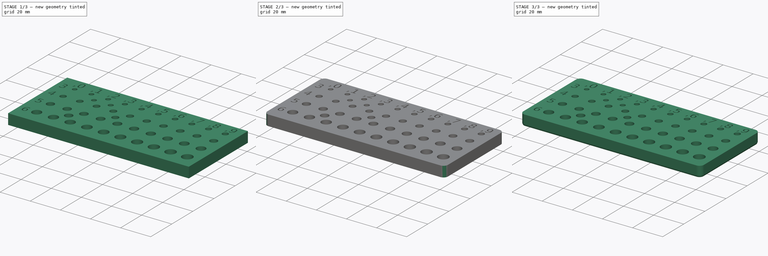
[diagram: build sequence overview — one tinted view per stage of 3, left to right]
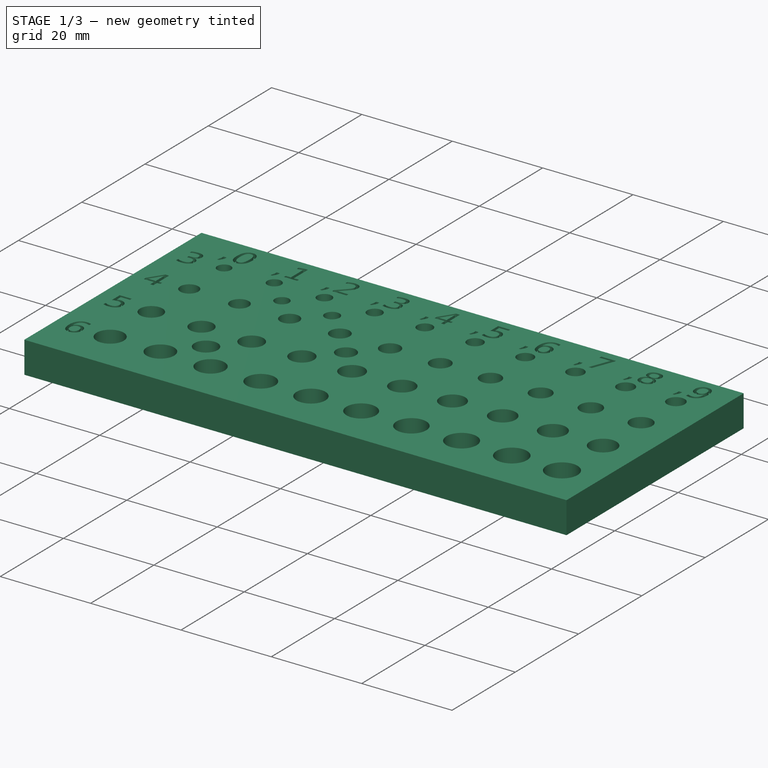
[diagram: stage 1 of 3 — iso view after this stage's code; geometry added in this stage tinted green]
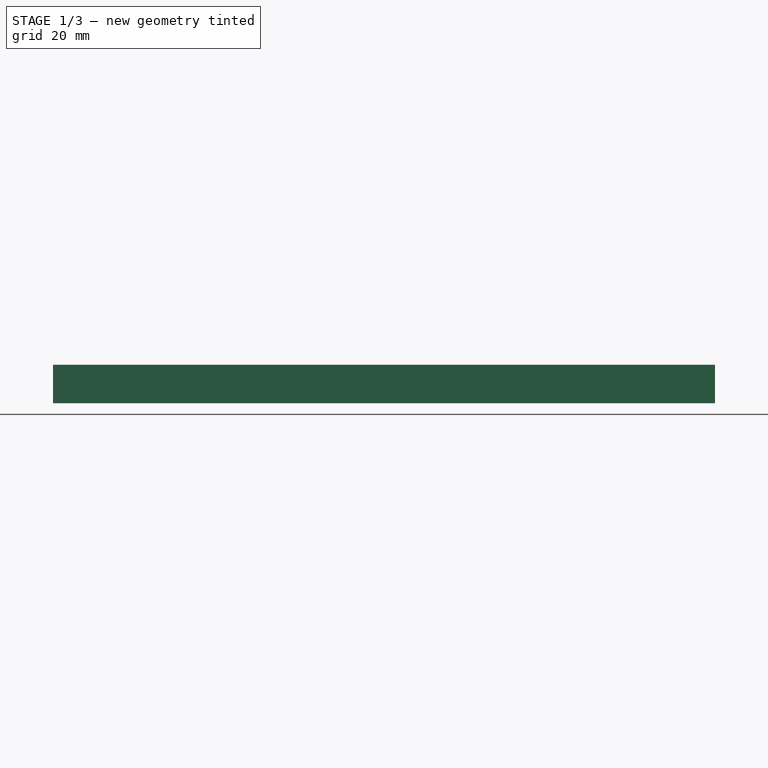
[diagram: stage 1 of 3 — front view after this stage's code; geometry added in this stage tinted green]
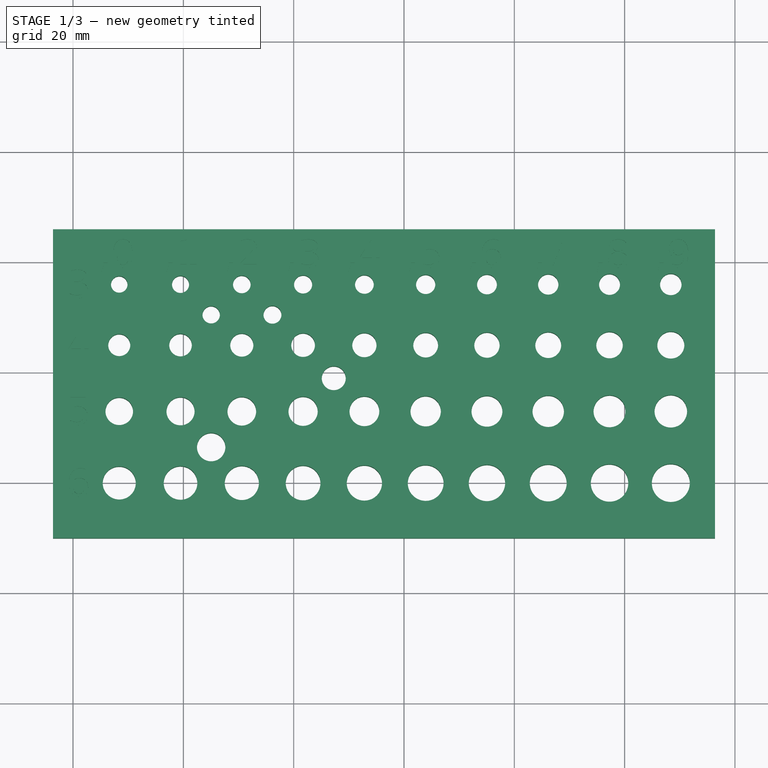
[diagram: stage 1 of 3 — top view after this stage's code; geometry added in this stage tinted green]
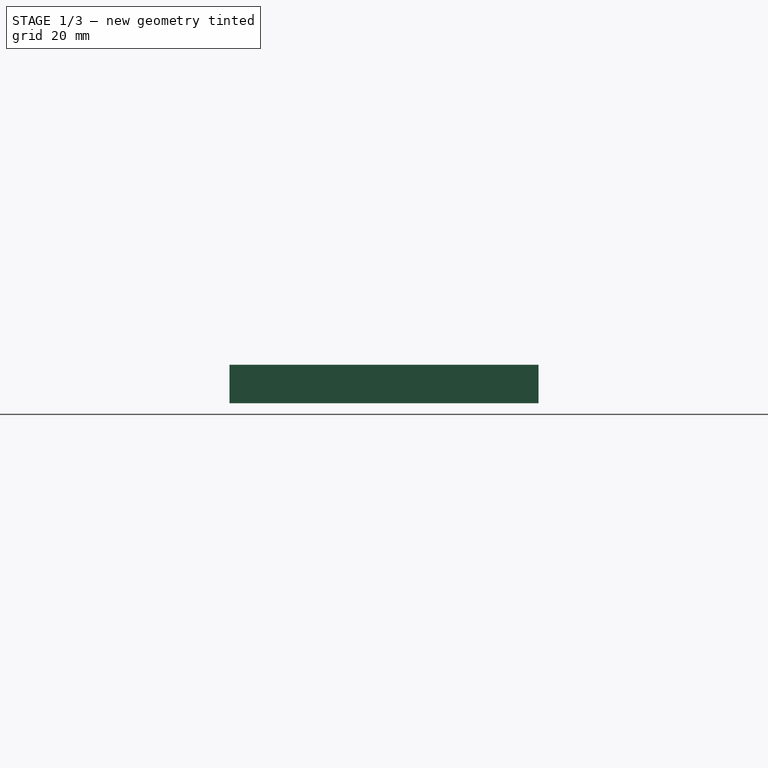
[diagram: stage 1 of 3 — right view after this stage's code; geometry added in this stage tinted green]
FCSTD DOCUMENT  (FreeCAD 1.0R39285 (Git))
Label: FreeCAD-Test
License: All rights reserved
LicenseURL: http://en.wikipedia.org/wiki/All_rights_reserved
objects: Part::Part2DObjectPython×14, Sketcher::SketchObject×2, PartDesign::Chamfer×2, PartDesign::Pad×1, PartDesign::Pocket×1, PartDesign::Fillet×1, PartDesign::Body×1
note: 34 computed .brp shape members not serialized (recipe doc carries the construction recipe); baked Part::Feature solids carry a one-line shape summary decoded from their .brp

FEATURE [Sketcher::SketchObject] Sketch005
  ArcFitTolerance = 1e-06
  AttachmentSupport = -> [XY_Plane002]
  FullyConstrained = false
  MakeInternals = false
  MapMode = 5
  sketch-geometry (84):
    g0: LineSegment StartX=36.3778 StartY=45.9194 StartZ=0 EndX=36.3778 EndY=-10.0806 EndZ=0
    g1: LineSegment StartX=36.3778 StartY=-10.0806 StartZ=0 EndX=156.378 EndY=-10.0806 EndZ=0
    g2: LineSegment StartX=156.378 StartY=-10.0806 StartZ=0 EndX=156.378 EndY=45.9194 EndZ=0
    g3: LineSegment StartX=156.378 StartY=45.9194 StartZ=0 EndX=36.3778 EndY=45.9194 EndZ=0
    g4: Circle CenterX=48.3778 CenterY=35.9194 CenterZ=0 NormalX=0 NormalY=0 NormalZ=1 AngleXU=0 Radius=1.5
    g5: Circle CenterX=59.4889 CenterY=35.9194 CenterZ=0 NormalX=0 NormalY=0 NormalZ=1 AngleXU=0 Radius=1.55
    g6: Circle CenterX=70.6 CenterY=35.9194 CenterZ=0 NormalX=0 NormalY=0 NormalZ=1 AngleXU=0 Radius=1.6
    g7: Circle CenterX=81.7111 CenterY=35.9194 CenterZ=0 NormalX=0 NormalY=0 NormalZ=1 AngleXU=0 Radius=1.65
    g8: Circle CenterX=92.8222 CenterY=35.9194 CenterZ=0 NormalX=0 NormalY=0 NormalZ=1 AngleXU=0 Radius=1.7
    g9: Circle CenterX=103.933 CenterY=35.9194 CenterZ=0 NormalX=0 NormalY=0 NormalZ=1 AngleXU=0 Radius=1.75
    g10: Circle CenterX=115.044 CenterY=35.9194 CenterZ=0 NormalX=0 NormalY=0 NormalZ=1 AngleXU=0 Radius=1.8
    g11: Circle CenterX=126.156 CenterY=35.9194 CenterZ=0 NormalX=0 NormalY=0 NormalZ=1 AngleXU=0 Radius=1.85
    g12: Circle CenterX=137.267 CenterY=35.9194 CenterZ=0 NormalX=0 NormalY=0 NormalZ=1 AngleXU=0 Radius=1.9
    g13: Circle CenterX=148.378 CenterY=35.9194 CenterZ=0 NormalX=0 NormalY=0 NormalZ=1 AngleXU=0 Radius=1.95
    g14: LineSegment [constr] StartX=48.3778 StartY=35.9194 StartZ=0 EndX=59.4889 EndY=35.9194 EndZ=0
    g15: LineSegment [constr] StartX=59.4889 StartY=35.9194 StartZ=0 EndX=70.6 EndY=35.9194 EndZ=0
    g16: LineSegment [constr] StartX=70.6 StartY=35.9194 StartZ=0 EndX=81.7111 EndY=35.9194 EndZ=0
    g17: LineSegment [constr] StartX=81.7111 StartY=35.9194 StartZ=0 EndX=92.8222 EndY=35.9194 EndZ=0
    g18: LineSegment [constr] StartX=92.8222 StartY=35.9194 StartZ=0 EndX=103.933 EndY=35.9194 EndZ=0
    g19: LineSegment [constr] StartX=103.933 StartY=35.9194 StartZ=0 EndX=115.044 EndY=35.9194 EndZ=0
    g20: LineSegment [constr] StartX=115.044 StartY=35.9194 StartZ=0 EndX=126.156 EndY=35.9194 EndZ=0
    g21: LineSegment [constr] StartX=126.156 StartY=35.9194 StartZ=0 EndX=137.267 EndY=35.9194 EndZ=0
    g22: LineSegment [constr] StartX=137.267 StartY=35.9194 StartZ=0 EndX=148.378 EndY=35.9194 EndZ=0
    g23: Circle CenterX=48.3778 CenterY=24.9194 CenterZ=0 NormalX=0 NormalY=0 NormalZ=1 AngleXU=0 Radius=2
    g24: Circle CenterX=59.4889 CenterY=24.9194 CenterZ=0 NormalX=0 NormalY=0 NormalZ=1 AngleXU=0 Radius=2.05
    g25: Circle CenterX=70.6 CenterY=24.9194 CenterZ=0 NormalX=0 NormalY=0 NormalZ=1 AngleXU=0 Radius=2.1
    g26: Circle CenterX=81.7111 CenterY=24.9194 CenterZ=0 NormalX=0 NormalY=0 NormalZ=1 AngleXU=0 Radius=2.15
    g27: Circle CenterX=92.8222 CenterY=24.9194 CenterZ=0 NormalX=0 NormalY=0 NormalZ=1 AngleXU=0 Radius=2.2
    g28: Circle CenterX=103.933 CenterY=24.9194 CenterZ=0 NormalX=0 NormalY=0 NormalZ=1 AngleXU=0 Radius=2.25
    g29: Circle CenterX=115.044 CenterY=24.9194 CenterZ=0 NormalX=0 NormalY=0 NormalZ=1 AngleXU=0 Radius=2.3
    g30: Circle CenterX=126.156 CenterY=24.9194 CenterZ=0 NormalX=0 NormalY=0 NormalZ=1 AngleXU=0 Radius=2.35
    g31: Circle CenterX=137.267 CenterY=24.9194 CenterZ=0 NormalX=0 NormalY=0 NormalZ=1 AngleXU=0 Radius=2.4
    g32: Circle CenterX=148.378 CenterY=24.9194 CenterZ=0 NormalX=0 NormalY=0 NormalZ=1 AngleXU=0 Radius=2.45
    g33: LineSegment [constr] StartX=48.3778 StartY=24.9194 StartZ=0 EndX=59.4889 EndY=24.9194 EndZ=0
    g34: LineSegment [constr] StartX=59.4889 StartY=24.9194 StartZ=0 EndX=70.6 EndY=24.9194 EndZ=0
    g35: LineSegment [constr] StartX=70.6 StartY=24.9194 StartZ=0 EndX=81.7111 EndY=24.9194 EndZ=0
    g36: LineSegment [constr] StartX=81.7111 StartY=24.9194 StartZ=0 EndX=92.8222 EndY=24.9194 EndZ=0
    g37: LineSegment [constr] StartX=92.8222 StartY=24.9194 StartZ=0 EndX=103.933 EndY=24.9194 EndZ=0
    g38: LineSegment [constr] StartX=103.933 StartY=24.9194 StartZ=0 EndX=115.044 EndY=24.9194 EndZ=0
    g39: LineSegment [constr] StartX=115.044 StartY=24.9194 StartZ=0 EndX=126.156 EndY=24.9194 EndZ=0
    g40: LineSegment [constr] StartX=126.156 StartY=24.9194 StartZ=0 EndX=137.267 EndY=24.9194 EndZ=0
    g41: LineSegment [constr] StartX=137.267 StartY=24.9194 StartZ=0 EndX=148.378 EndY=24.9194 EndZ=0
    g42: Circle CenterX=48.3778 CenterY=12.9194 CenterZ=0 NormalX=0 NormalY=0 NormalZ=1 AngleXU=0 Radius=2.5
    g43: Circle CenterX=59.4889 CenterY=12.9194 CenterZ=0 NormalX=0 NormalY=0 NormalZ=1 AngleXU=0 Radius=2.55
    g44: Circle CenterX=70.6 CenterY=12.9194 CenterZ=0 NormalX=0 NormalY=0 NormalZ=1 AngleXU=0 Radius=2.6
    g45: Circle CenterX=81.7111 CenterY=12.9194 CenterZ=0 NormalX=0 NormalY=0 NormalZ=1 AngleXU=0 Radius=2.65
    g46: Circle CenterX=92.8222 CenterY=12.9194 CenterZ=0 NormalX=0 NormalY=0 NormalZ=1 AngleXU=0 Radius=2.7
    g47: Circle CenterX=103.933 CenterY=12.9194 CenterZ=0 NormalX=0 NormalY=0 NormalZ=1 AngleXU=0 Radius=2.75
    g48: Circle CenterX=115.044 CenterY=12.9194 CenterZ=0 NormalX=0 NormalY=0 NormalZ=1 AngleXU=0 Radius=2.8
    g49: Circle CenterX=126.156 CenterY=12.9194 CenterZ=0 NormalX=0 NormalY=0 NormalZ=1 AngleXU=0 Radius=2.85
    g50: Circle CenterX=137.267 CenterY=12.9194 CenterZ=0 NormalX=0 NormalY=0 NormalZ=1 AngleXU=0 Radius=2.9
    g51: Circle CenterX=148.378 CenterY=12.9194 CenterZ=0 NormalX=0 NormalY=0 NormalZ=1 AngleXU=0 Radius=2.95
    g52: LineSegment [constr] StartX=48.3778 StartY=12.9194 StartZ=0 EndX=59.4889 EndY=12.9194 EndZ=0
    g53: LineSegment [constr] StartX=59.4889 StartY=12.9194 StartZ=0 EndX=70.6 EndY=12.9194 EndZ=0
    g54: LineSegment [constr] StartX=70.6 StartY=12.9194 StartZ=0 EndX=81.7111 EndY=12.9194 EndZ=0
    g55: LineSegment [constr] StartX=81.7111 StartY=12.9194 StartZ=0 EndX=92.8222 EndY=12.9194 EndZ=0
    g56: LineSegment [constr] StartX=92.8222 StartY=12.9194 StartZ=0 EndX=103.933 EndY=12.9194 EndZ=0
    g57: LineSegment [constr] StartX=103.933 StartY=12.9194 StartZ=0 EndX=115.044 EndY=12.9194 EndZ=0
    g58: LineSegment [constr] StartX=115.044 StartY=12.9194 StartZ=0 EndX=126.156 EndY=12.9194 EndZ=0
    g59: LineSegment [constr] StartX=126.156 StartY=12.9194 StartZ=0 EndX=137.267 EndY=12.9194 EndZ=0
    g60: LineSegment [constr] StartX=137.267 StartY=12.9194 StartZ=0 EndX=148.378 EndY=12.9194 EndZ=0
    g61: Circle CenterX=48.3778 CenterY=-0.0805711 CenterZ=0 NormalX=0 NormalY=0 NormalZ=1 AngleXU=0 Radius=3
    g62: Circle CenterX=59.4889 CenterY=-0.0805711 CenterZ=0 NormalX=0 NormalY=0 NormalZ=1 AngleXU=0 Radius=3.05
    g63: Circle CenterX=70.6 CenterY=-0.0805711 CenterZ=0 NormalX=0 NormalY=0 NormalZ=1 AngleXU=0 Radius=3.1
    g64: Circle CenterX=81.7111 CenterY=-0.0805711 CenterZ=0 NormalX=0 NormalY=0 NormalZ=1 AngleXU=0 Radius=3.15
    g65: Circle CenterX=92.8222 CenterY=-0.0805711 CenterZ=0 NormalX=0 NormalY=0 NormalZ=1 AngleXU=0 Radius=3.2
    g66: Circle CenterX=103.933 CenterY=-0.0805711 CenterZ=0 NormalX=0 NormalY=0 NormalZ=1 AngleXU=0 Radius=3.25
    g67: Circle CenterX=115.044 CenterY=-0.0805711 CenterZ=0 NormalX=0 NormalY=0 NormalZ=1 AngleXU=0 Radius=3.3
    g68: Circle CenterX=126.156 CenterY=-0.0805711 CenterZ=0 NormalX=0 NormalY=0 NormalZ=1 AngleXU=0 Radius=3.35
    g69: Circle CenterX=137.267 CenterY=-0.0805711 CenterZ=0 NormalX=0 NormalY=0 NormalZ=1 AngleXU=0 Radius=3.4
    g70: Circle CenterX=148.378 CenterY=-0.0805711 CenterZ=0 NormalX=0 NormalY=0 NormalZ=1 AngleXU=0 Radius=3.45
    g71: LineSegment [constr] StartX=48.3778 StartY=-0.0805711 StartZ=0 EndX=59.4889 EndY=-0.0805711 EndZ=0
    g72: LineSegment [constr] StartX=59.4889 StartY=-0.0805711 StartZ=0 EndX=70.6 EndY=-0.0805711 EndZ=0
    g73: LineSegment [constr] StartX=70.6 StartY=-0.0805711 StartZ=0 EndX=81.7111 EndY=-0.0805711 EndZ=0
    g74: LineSegment [constr] StartX=81.7111 StartY=-0.0805711 StartZ=0 EndX=92.8222 EndY=-0.0805711 EndZ=0
    g75: LineSegment [constr] StartX=92.8222 StartY=-0.0805711 StartZ=0 EndX=103.933 EndY=-0.0805711 EndZ=0
    g76: LineSegment [constr] StartX=103.933 StartY=-0.0805711 StartZ=0 EndX=115.044 EndY=-0.0805711 EndZ=0
    g77: LineSegment [constr] StartX=115.044 StartY=-0.0805711 StartZ=0 EndX=126.156 EndY=-0.0805711 EndZ=0
    g78: LineSegment [constr] StartX=126.156 StartY=-0.0805711 StartZ=0 EndX=137.267 EndY=-0.0805711 EndZ=0
    g79: LineSegment [constr] StartX=137.267 StartY=-0.0805711 StartZ=0 EndX=148.378 EndY=-0.0805711 EndZ=0
    g80: Circle CenterX=65.0445 CenterY=30.4194 CenterZ=0 NormalX=0 NormalY=0 NormalZ=1 AngleXU=0 Radius=1.575
    g81: Circle CenterX=76.1556 CenterY=30.4194 CenterZ=0 NormalX=0 NormalY=0 NormalZ=1 AngleXU=0 Radius=1.625
    g82: Circle CenterX=87.2667 CenterY=18.9194 CenterZ=0 NormalX=0 NormalY=0 NormalZ=1 AngleXU=0 Radius=2.175
    g83: Circle CenterX=65.0445 CenterY=6.41943 CenterZ=0 NormalX=0 NormalY=0 NormalZ=1 AngleXU=0 Radius=2.575
  constraints (211):
    c: Coincident(g0,g1)
    c: Coincident(g1,g2)
    c: Coincident(g2,g3)
    c: Coincident(g3,g0)
    c: Vertical(g0)
    c: Vertical(g2)
    c: Horizontal(g1)
    c: Horizontal(g3)
    c: Coincident(g14,g4)
    c: Coincident(g14,g5)
    c: Coincident(g14,g15)
    c: Coincident(g15,g6)
    c: Horizontal(g15)
    c: Coincident(g15,g16)
    c: Coincident(g16,g7)
    c: Horizontal(g16)
    c: Coincident(g16,g17)
    c: Coincident(g17,g8)
    c: Horizontal(g17)
    c: Coincident(g17,g18)
    c: Coincident(g18,g9)
    c: Horizontal(g18)
    c: Coincident(g18,g19)
    c: Coincident(g19,g10)
    c: Horizontal(g19)
    c: Coincident(g19,g20)
    c: Coincident(g20,g11)
    c: Horizontal(g20)
    c: Coincident(g20,g21)
    c: Coincident(g21,g12)
    c: Horizontal(g21)
    c: Coincident(g21,g22)
    c: Coincident(g22,g13)
    c: Horizontal(g14)
    c: Horizontal(g22)
    c: Equal(g14,g15)
    c: Equal(g16,g15)
    c: Equal(g17,g16)
    c: Equal(g18,g17)
    c: Equal(g19,g18)
    c: Equal(g20,g19)
    c: Equal(g21,g20)
    c: Equal(g22,g21)
    c: Diameter(g4) = 3
    c: Diameter(g5) = 3.1
    c: Diameter(g6) = 3.2
    c: Diameter(g7) = 3.3
    c: Diameter(g8) = 3.4
    c: Diameter(g9) = 3.5
    c: Diameter(g10) = 3.6
    c: Diameter(g11) = 3.7
    c: Diameter(g12) = 3.8
    c: Diameter(g13) = 3.9
    c: DistanceX(g0,g4) = 12
    c: DistanceX(g13,g2) = 8
    c: Horizontal(g23,g24)
    c: Horizontal(g24,g25)
    c: Horizontal(g25,g26)
    c: Horizontal(g26,g27)
    c: Horizontal(g27,g28)
    c: Horizontal(g28,g29)
    c: Horizontal(g29,g30)
    c: Horizontal(g30,g31)
    c: Horizontal(g31,g32)
    c: Vertical(g23,g4)
    c: Coincident(g33,g23)
    c: Coincident(g33,g24)
    c: Coincident(g34,g24)
    c: Coincident(g34,g25)
    c: Coincident(g34,g35)
    c: Coincident(g35,g26)
    c: Coincident(g35,g36)
    c: Coincident(g36,g27)
    c: Coincident(g36,g37)
    c: Coincident(g37,g28)
    c: Coincident(g37,g38)
    c: Coincident(g38,g29)
    c: Coincident(g38,g39)
    c: Coincident(g39,g30)
    c: Coincident(g39,g40)
    c: Coincident(g40,g31)
    c: Coincident(g41,g31)
    c: Coincident(g41,g32)
    c: Vertical(g32,g13)
    c: Equal(g33,g34)
    c: Equal(g34,g35)
    c: Equal(g35,g36)
    c: Equal(g36,g37)
    c: Equal(g37,g38)
    c: Equal(g38,g39)
    c: Equal(g39,g40)
    c: Equal(g40,g41)
    c: Diameter(g23) = 4
    c: Diameter(g24) = 4.1
    c: Diameter(g25) = 4.2
    c: Diameter(g26) = 4.3
    c: Diameter(g27) = 4.4
    c: Diameter(g28) = 4.5
    c: Diameter(g29) = 4.6
    c: Diameter(g30) = 4.7
    c: Diameter(g31) = 4.8
    c: Diameter(g32) = 4.9
    c: DistanceY(g23,g4) = 11
    c: Horizontal(g42,g43)
    c: Horizontal(g43,g44)
    c: Horizontal(g44,g45)
    c: Horizontal(g45,g46)
    c: Horizontal(g46,g47)
    c: Horizontal(g47,g48)
    c: Horizontal(g48,g49)
    c: Horizontal(g49,g50)
    c: Horizontal(g50,g51)
    c: Vertical(g42,g23)
    c: Vertical(g51,g32)
    c: Coincident(g52,g42)
    c: Coincident(g52,g43)
    c: Coincident(g52,g53)
    c: Coincident(g53,g44)
    c: Coincident(g53,g54)
    c: Coincident(g54,g45)
    c: Coincident(g54,g55)
    c: Coincident(g55,g46)
    c: Coincident(g55,g56)
    c: Coincident(g56,g47)
    c: Coincident(g56,g57)
    c: Coincident(g57,g48)
    c: Coincident(g57,g58)
    c: Coincident(g58,g49)
    c: Coincident(g58,g59)
    c: Coincident(g59,g50)
    c: Coincident(g59,g60)
    c: Coincident(g60,g51)
    c: Equal(g60,g59)
    c: Equal(g59,g58)
    c: Equal(g58,g57)
    c: Equal(g57,g56)
    c: Equal(g56,g55)
    c: Equal(g55,g54)
    c: Equal(g54,g53)
    c: Equal(g53,g52)
    c: Diameter(g42) = 5
    c: Diameter(g43) = 5.1
    c: Diameter(g44) = 5.2
    c: Diameter(g45) = 5.3
    c: Diameter(g46) = 5.4
    c: Diameter(g47) = 5.5
    c: Diameter(g48) = 5.6
    c: Diameter(g49) = 5.7
    c: Diameter(g50) = 5.8
    c: Diameter(g51) = 5.9
    c: Horizontal(g61,g62)
    c: Horizontal(g62,g63)
    c: Horizontal(g63,g64)
    c: Horizontal(g64,g65)
    c: Horizontal(g65,g66)
    c: Horizontal(g66,g67)
    c: Horizontal(g67,g68)
    c: Horizontal(g68,g69)
    c: Horizontal(g69,g70)
    c: Coincident(g71,g61)
    c: Coincident(g71,g62)
    c: Coincident(g71,g72)
    c: Coincident(g72,g63)
    c: Coincident(g72,g73)
    c: Coincident(g73,g64)
    c: Coincident(g73,g74)
    c: Coincident(g74,g65)
    c: Coincident(g74,g75)
    c: Coincident(g75,g66)
    c: Coincident(g75,g76)
    c: Coincident(g76,g67)
    c: Coincident(g76,g77)
    c: Coincident(g77,g68)
    c: Coincident(g77,g78)
    c: Coincident(g78,g69)
    c: Coincident(g78,g79)
    c: Coincident(g79,g70)
    c: Equal(g79,g78)
    c: Equal(g78,g77)
    c: Equal(g77,g76)
    c: Equal(g76,g75)
    c: Equal(g75,g73)
    c: Equal(g73,g72)
    c: Equal(g72,g71)
    c: Vertical(g61,g42)
    c: Vertical(g70,g51)
    c: Diameter(g61) = 6
    c: Diameter(g62) = 6.1
    c: Diameter(g63) = 6.2
    c: Diameter(g64) = 6.3
    c: Diameter(g65) = 6.4
    c: Diameter(g66) = 6.5
    c: Diameter(g67) = 6.6
    c: Diameter(g68) = 6.7
    c: Diameter(g69) = 6.8
    c: Diameter(g70) = 6.9
    c: DistanceY(g4,g0) = 10
    c: DistanceY(g0,g61) = 10
    c: DistanceX(g1,g1) = 120
    c: Equal(g75,g74)
    c: DistanceY(g42,g23) = 12
    c: Distance(g42,g61) = 13
    c: Distance(g4,g23) = 11
    c: Symmetric(g5,g25,g80)
    c: Symmetric(g6,g26,g81)
    c: Symmetric(g43,g63,g83)
    c: Symmetric(g26,g46,g82)
    c: Diameter(g80) = 3.15
    c: Diameter(g81) = 3.25
    c: Diameter(g82) = 4.35
    c: Diameter(g83) = 5.15
FEATURE [PartDesign::Pad] Pad005
  Direction = (0,0,1)
  Length = 7
  Length2 = 10
  Profile = -> Sketch005
  ReferenceAxis = -> Sketch005 [N_Axis]
  Refine = true
  Reversed = true
  Suppressed = false
  Type = 0
FEATURE [Part::Part2DObjectPython] ShapeString003  # Draft 2D object (typed FeaturePython)
  FontFile = <path>
  Fuse = false
  Justification = 7
  JustificationReference = 0
  KeepLeftMargin = false
  MakeFace = true
  ObliqueAngle = 0
  Placement = pos=(48,39,0) rot=(0,0,1;0rad)
  ScaleToSize = true
  Size = 5
  String = ,0
  Tracking = 0
FEATURE [Part::Part2DObjectPython] ShapeString004  # Draft 2D object (typed FeaturePython)
  FontFile = <path>
  Fuse = false
  Justification = 6
  JustificationReference = 0
  KeepLeftMargin = false
  MakeFace = true
  ObliqueAngle = 0
  Placement = pos=(57,39,0) rot=(0,0,1;0rad)
  ScaleToSize = true
  Size = 5
  String = ,1
  Tracking = 0
FEATURE [Part::Part2DObjectPython] ShapeString005  # Draft 2D object (typed FeaturePython)
  FontFile = <path>
  Fuse = false
  Justification = 6
  JustificationReference = 0
  KeepLeftMargin = false
  MakeFace = true
  ObliqueAngle = 0
  Placement = pos=(68,39,0) rot=(0,0,1;0rad)
  ScaleToSize = true
  Size = 5
  String = ,2
  Tracking = 0
FEATURE [Part::Part2DObjectPython] ShapeString006  # Draft 2D object (typed FeaturePython)
  FontFile = <path>
  Fuse = false
  Justification = 6
  JustificationReference = 0
  KeepLeftMargin = false
  MakeFace = true
  ObliqueAngle = 0
  Placement = pos=(79,39,0) rot=(0,0,1;0rad)
  ScaleToSize = true
  Size = 5
  String = ,3
  Tracking = 0
FEATURE [Part::Part2DObjectPython] ShapeString007  # Draft 2D object (typed FeaturePython)
  FontFile = <path>
  Fuse = false
  Justification = 6
  JustificationReference = 0
  KeepLeftMargin = false
  MakeFace = true
  ObliqueAngle = 0
  Placement = pos=(90,39,0) rot=(0,0,1;0rad)
  ScaleToSize = true
  Size = 5
  String = ,4
  Tracking = 0
FEATURE [Part::Part2DObjectPython] ShapeString008  # Draft 2D object (typed FeaturePython)
  FontFile = <path>
  Fuse = false
  Justification = 6
  JustificationReference = 0
  KeepLeftMargin = false
  MakeFace = true
  ObliqueAngle = 0
  Placement = pos=(101,39,0) rot=(0,0,1;0rad)
  ScaleToSize = true
  Size = 5
  String = ,5
  Tracking = 0
FEATURE [Part::Part2DObjectPython] ShapeString009  # Draft 2D object (typed FeaturePython)
  FontFile = <path>
  Fuse = false
  Justification = 6
  JustificationReference = 0
  KeepLeftMargin = false
  MakeFace = true
  ObliqueAngle = 0
  Placement = pos=(112,39,0) rot=(0,0,1;0rad)
  ScaleToSize = true
  Size = 5
  String = ,6
  Tracking = 0
FEATURE [Part::Part2DObjectPython] ShapeString010  # Draft 2D object (typed FeaturePython)
  FontFile = <path>
  Fuse = false
  Justification = 6
  JustificationReference = 0
  KeepLeftMargin = false
  MakeFace = true
  ObliqueAngle = 0
  Placement = pos=(124,39,0) rot=(0,0,1;0rad)
  ScaleToSize = true
  Size = 5
  String = ,7
  Tracking = 0
FEATURE [Part::Part2DObjectPython] ShapeString011  # Draft 2D object (typed FeaturePython)
  FontFile = <path>
  Fuse = false
  Justification = 6
  JustificationReference = 0
  KeepLeftMargin = false
  MakeFace = true
  ObliqueAngle = 0
  Placement = pos=(135,39,0) rot=(0,0,1;0rad)
  ScaleToSize = true
  Size = 5
  String = ,8
  Tracking = 0
FEATURE [Part::Part2DObjectPython] ShapeString012  # Draft 2D object (typed FeaturePython)
  FontFile = <path>
  Fuse = false
  Justification = 6
  JustificationReference = 0
  KeepLeftMargin = false
  MakeFace = true
  ObliqueAngle = 0
  Placement = pos=(146,39,0) rot=(0,0,1;0rad)
  ScaleToSize = true
  Size = 5
  String = ,9
  Tracking = 0
FEATURE [Part::Part2DObjectPython] ShapeString013  # Draft 2D object (typed FeaturePython)
  FontFile = <path>
  Fuse = false
  Justification = 4
  JustificationReference = 0
  KeepLeftMargin = false
  MakeFace = true
  ObliqueAngle = 0
  Placement = pos=(41,36,0) rot=(0,0,1;0rad)
  ScaleToSize = true
  Size = 5
  String = 3
  Tracking = 0
FEATURE [Part::Part2DObjectPython] ShapeString014  # Draft 2D object (typed FeaturePython)
  FontFile = <path>
  Fuse = false
  Justification = 4
  JustificationReference = 0
  KeepLeftMargin = false
  MakeFace = true
  ObliqueAngle = 0
  Placement = pos=(41,25,0) rot=(0,0,1;0rad)
  ScaleToSize = true
  Size = 5
  String = 4
  Tracking = 0
FEATURE [Part::Part2DObjectPython] ShapeString015  # Draft 2D object (typed FeaturePython)
  FontFile = <path>
  Fuse = false
  Justification = 4
  JustificationReference = 0
  KeepLeftMargin = false
  MakeFace = true
  ObliqueAngle = 0
  Placement = pos=(41,13,0) rot=(0,0,1;0rad)
  ScaleToSize = true
  Size = 5
  String = 5
  Tracking = 0
FEATURE [Part::Part2DObjectPython] ShapeString016  # Draft 2D object (typed FeaturePython)
  FontFile = <path>
  Fuse = false
  Justification = 4
  JustificationReference = 0
  KeepLeftMargin = false
  MakeFace = true
  ObliqueAngle = 0
  Placement = pos=(41,0,0) rot=(0,0,1;0rad)
  ScaleToSize = true
  Size = 5
  String = 6
  Tracking = 0
FEATURE [Sketcher::SketchObject] Sketch006
  ArcFitTolerance = 1e-06
  FullyConstrained = false
  MakeInternals = false
  sketch-geometry (352):
    g0: LineSegment StartX=45.4925 StartY=39.8571 StartZ=0 EndX=46.199 EndY=39.8571 EndZ=0
    g1: LineSegment StartX=45.4925 StartY=39.2828 StartZ=0 EndX=45.4925 EndY=39.8571 EndZ=0
    g2: LineSegment StartX=45.218 StartY=38.2143 StartZ=0 EndX=45.4925 EndY=39.2828 EndZ=0
    g3: LineSegment StartX=45.6499 StartY=38.2143 StartZ=0 EndX=45.218 EndY=38.2143 EndZ=0
    g4: LineSegment StartX=46.199 StartY=39.2828 StartZ=0 EndX=45.6499 EndY=38.2143 EndZ=0
    g5: LineSegment StartX=46.199 StartY=39.8571 StartZ=0 EndX=46.199 EndY=39.2828 EndZ=0
    g6: BSplineCurve PolesCount=3 KnotsCount=2 Degree=2 IsPeriodic=0
    g7: BSplineCurve PolesCount=3 KnotsCount=2 Degree=2 IsPeriodic=0
    g8: BSplineCurve PolesCount=3 KnotsCount=2 Degree=2 IsPeriodic=0
    g9: BSplineCurve PolesCount=3 KnotsCount=2 Degree=2 IsPeriodic=0
    g10: BSplineCurve PolesCount=3 KnotsCount=2 Degree=2 IsPeriodic=0
    g11: BSplineCurve PolesCount=3 KnotsCount=2 Degree=2 IsPeriodic=0
    g12: BSplineCurve PolesCount=3 KnotsCount=2 Degree=2 IsPeriodic=0
    g13: BSplineCurve PolesCount=3 KnotsCount=2 Degree=2 IsPeriodic=0
    g14: BSplineCurve PolesCount=3 KnotsCount=2 Degree=2 IsPeriodic=0
    g15: BSplineCurve PolesCount=3 KnotsCount=2 Degree=2 IsPeriodic=0
    g16: BSplineCurve PolesCount=3 KnotsCount=2 Degree=2 IsPeriodic=0
    g17: BSplineCurve PolesCount=3 KnotsCount=2 Degree=2 IsPeriodic=0
    g18: BSplineCurve PolesCount=3 KnotsCount=2 Degree=2 IsPeriodic=0
    g19: BSplineCurve PolesCount=3 KnotsCount=2 Degree=2 IsPeriodic=0
    g20: BSplineCurve PolesCount=3 KnotsCount=2 Degree=2 IsPeriodic=0
    g21: BSplineCurve PolesCount=3 KnotsCount=2 Degree=2 IsPeriodic=0
    g22: LineSegment StartX=57.2746 StartY=39.8571 StartZ=0 EndX=57.981 EndY=39.8571 EndZ=0
    g23: LineSegment StartX=57.2746 StartY=39.2828 StartZ=0 EndX=57.2746 EndY=39.8571 EndZ=0
    g24: LineSegment StartX=57 StartY=38.2143 StartZ=0 EndX=57.2746 EndY=39.2828 EndZ=0
    g25: LineSegment StartX=57.4319 StartY=38.2143 StartZ=0 EndX=57 EndY=38.2143 EndZ=0
    g26: LineSegment StartX=57.981 StartY=39.2828 StartZ=0 EndX=57.4319 EndY=38.2143 EndZ=0
    g27: LineSegment StartX=57.981 StartY=39.8571 StartZ=0 EndX=57.981 EndY=39.2828 EndZ=0
    g28: LineSegment StartX=59.5071 StartY=39.5714 StartZ=0 EndX=60.6121 EndY=39.5714 EndZ=0
    g29: LineSegment StartX=59.5071 StartY=39 StartZ=0 EndX=59.5071 EndY=39.5714 EndZ=0
    g30: LineSegment StartX=62.3866 StartY=39 StartZ=0 EndX=59.5071 EndY=39 EndZ=0
    g31: LineSegment StartX=62.3866 StartY=39.5714 StartZ=0 EndX=62.3866 EndY=39 EndZ=0
    g32: LineSegment StartX=61.2817 StartY=39.5714 StartZ=0 EndX=62.3866 EndY=39.5714 EndZ=0
    g33: LineSegment StartX=61.2817 StartY=44 StartZ=0 EndX=61.2817 EndY=39.5714 EndZ=0
    g34: LineSegment StartX=60.6054 StartY=44 StartZ=0 EndX=61.2817 EndY=44 EndZ=0
    g35: LineSegment StartX=59.41 StartY=43.7571 StartZ=0 EndX=60.6054 EndY=44 EndZ=0
    g36: LineSegment StartX=59.41 StartY=43.1429 StartZ=0 EndX=59.41 EndY=43.7571 EndZ=0
    g37: LineSegment StartX=60.6121 StartY=43.3857 StartZ=0 EndX=59.41 EndY=43.1429 EndZ=0
    g38: LineSegment StartX=60.6121 StartY=39.5714 StartZ=0 EndX=60.6121 EndY=43.3857 EndZ=0
    g39: LineSegment StartX=68.2746 StartY=39.8571 StartZ=0 EndX=68.981 EndY=39.8571 EndZ=0
    g40: LineSegment StartX=68.2746 StartY=39.2828 StartZ=0 EndX=68.2746 EndY=39.8571 EndZ=0
    g41: LineSegment StartX=68 StartY=38.2143 StartZ=0 EndX=68.2746 EndY=39.2828 EndZ=0
    g42: LineSegment StartX=68.4319 StartY=38.2143 StartZ=0 EndX=68 EndY=38.2143 EndZ=0
    g43: LineSegment StartX=68.981 StartY=39.2828 StartZ=0 EndX=68.4319 EndY=38.2143 EndZ=0
    g44: LineSegment StartX=68.981 StartY=39.8571 StartZ=0 EndX=68.981 EndY=39.2828 EndZ=0
    g45: LineSegment StartX=70.9725 StartY=39.5714 StartZ=0 EndX=73.333 EndY=39.5714 EndZ=0
    g46: BSplineCurve PolesCount=3 KnotsCount=2 Degree=2 IsPeriodic=0
    g47: BSplineCurve PolesCount=3 KnotsCount=2 Degree=2 IsPeriodic=0
    g48: BSplineCurve PolesCount=3 KnotsCount=2 Degree=2 IsPeriodic=0
    g49: BSplineCurve PolesCount=3 KnotsCount=2 Degree=2 IsPeriodic=0
    g50: BSplineCurve PolesCount=3 KnotsCount=2 Degree=2 IsPeriodic=0
    g51: BSplineCurve PolesCount=3 KnotsCount=2 Degree=2 IsPeriodic=0
    g52: BSplineCurve PolesCount=3 KnotsCount=2 Degree=2 IsPeriodic=0
    g53: BSplineCurve PolesCount=3 KnotsCount=2 Degree=2 IsPeriodic=0
    g54: LineSegment StartX=70.1924 StartY=43.0714 StartZ=0 EndX=70.1924 EndY=43.7571 EndZ=0
    g55: BSplineCurve PolesCount=3 KnotsCount=2 Degree=2 IsPeriodic=0
    g56: BSplineCurve PolesCount=3 KnotsCount=2 Degree=2 IsPeriodic=0
    g57: BSplineCurve PolesCount=3 KnotsCount=2 Degree=2 IsPeriodic=0
    g58: BSplineCurve PolesCount=3 KnotsCount=2 Degree=2 IsPeriodic=0
    g59: BSplineCurve PolesCount=3 KnotsCount=2 Degree=2 IsPeriodic=0
    g60: BSplineCurve PolesCount=3 KnotsCount=2 Degree=2 IsPeriodic=0
    g61: BSplineCurve PolesCount=3 KnotsCount=2 Degree=2 IsPeriodic=0
    g62: BSplineCurve PolesCount=3 KnotsCount=2 Degree=2 IsPeriodic=0
    g63: LineSegment StartX=70.1589 StartY=39 StartZ=0 EndX=70.1589 EndY=39.5714 EndZ=0
    g64: LineSegment StartX=73.333 StartY=39 StartZ=0 EndX=70.1589 EndY=39 EndZ=0
    g65: LineSegment StartX=73.333 StartY=39.5714 StartZ=0 EndX=73.333 EndY=39 EndZ=0
    g66: LineSegment StartX=79.2746 StartY=39.8571 StartZ=0 EndX=79.981 EndY=39.8571 EndZ=0
    g67: LineSegment StartX=79.2746 StartY=39.2828 StartZ=0 EndX=79.2746 EndY=39.8571 EndZ=0
    g68: LineSegment StartX=79 StartY=38.2143 StartZ=0 EndX=79.2746 EndY=39.2828 EndZ=0
    g69: LineSegment StartX=79.4319 StartY=38.2143 StartZ=0 EndX=79 EndY=38.2143 EndZ=0
    g70: LineSegment StartX=79.981 StartY=39.2828 StartZ=0 EndX=79.4319 EndY=38.2143 EndZ=0
    g71: LineSegment StartX=79.981 StartY=39.8571 StartZ=0 EndX=79.981 EndY=39.2828 EndZ=0
    g72: BSplineCurve PolesCount=3 KnotsCount=2 Degree=2 IsPeriodic=0
    g73: BSplineCurve PolesCount=3 KnotsCount=2 Degree=2 IsPeriodic=0
    g74: BSplineCurve PolesCount=3 KnotsCount=2 Degree=2 IsPeriodic=0
    g75: BSplineCurve PolesCount=3 KnotsCount=2 Degree=2 IsPeriodic=0
    g76: BSplineCurve PolesCount=3 KnotsCount=2 Degree=2 IsPeriodic=0
    g77: BSplineCurve PolesCount=3 KnotsCount=2 Degree=2 IsPeriodic=0
    g78: BSplineCurve PolesCount=3 KnotsCount=2 Degree=2 IsPeriodic=0
    g79: LineSegment StartX=81.3297 StartY=43.2714 StartZ=0 EndX=81.3297 EndY=43.8714 EndZ=0
    g80: BSplineCurve PolesCount=3 KnotsCount=2 Degree=2 IsPeriodic=0
    g81: BSplineCurve PolesCount=3 KnotsCount=2 Degree=2 IsPeriodic=0
    g82: BSplineCurve PolesCount=3 KnotsCount=2 Degree=2 IsPeriodic=0
    g83: BSplineCurve PolesCount=3 KnotsCount=2 Degree=2 IsPeriodic=0
    g84: BSplineCurve PolesCount=3 KnotsCount=2 Degree=2 IsPeriodic=0
    g85: BSplineCurve PolesCount=3 KnotsCount=2 Degree=2 IsPeriodic=0
    g86: LineSegment StartX=82.0429 StartY=41.9429 StartZ=0 EndX=82.6522 EndY=41.9429 EndZ=0
    g87: LineSegment StartX=82.0429 StartY=41.3857 StartZ=0 EndX=82.0429 EndY=41.9429 EndZ=0
    g88: LineSegment StartX=82.6254 StartY=41.3857 StartZ=0 EndX=82.0429 EndY=41.3857 EndZ=0
    g89: BSplineCurve PolesCount=3 KnotsCount=2 Degree=2 IsPeriodic=0
    g90: BSplineCurve PolesCount=3 KnotsCount=2 Degree=2 IsPeriodic=0
    g91: BSplineCurve PolesCount=3 KnotsCount=2 Degree=2 IsPeriodic=0
    g92: BSplineCurve PolesCount=3 KnotsCount=2 Degree=2 IsPeriodic=0
    g93: BSplineCurve PolesCount=3 KnotsCount=2 Degree=2 IsPeriodic=0
    g94: BSplineCurve PolesCount=3 KnotsCount=2 Degree=2 IsPeriodic=0
    g95: LineSegment StartX=81.179 StartY=39.1429 StartZ=0 EndX=81.179 EndY=39.8 EndZ=0
    g96: BSplineCurve PolesCount=3 KnotsCount=2 Degree=2 IsPeriodic=0
    g97: BSplineCurve PolesCount=3 KnotsCount=2 Degree=2 IsPeriodic=0
    g98: BSplineCurve PolesCount=3 KnotsCount=2 Degree=2 IsPeriodic=0
    g99: BSplineCurve PolesCount=3 KnotsCount=2 Degree=2 IsPeriodic=0
    g100: BSplineCurve PolesCount=3 KnotsCount=2 Degree=2 IsPeriodic=0
    g101: LineSegment StartX=90.2746 StartY=39.8571 StartZ=0 EndX=90.981 EndY=39.8571 EndZ=0
    g102: LineSegment StartX=90.2746 StartY=39.2828 StartZ=0 EndX=90.2746 EndY=39.8571 EndZ=0
    g103: LineSegment StartX=90 StartY=38.2143 StartZ=0 EndX=90.2746 EndY=39.2828 EndZ=0
    g104: LineSegment StartX=90.4319 StartY=38.2143 StartZ=0 EndX=90 EndY=38.2143 EndZ=0
    g105: LineSegment StartX=90.981 StartY=39.2828 StartZ=0 EndX=90.4319 EndY=38.2143 EndZ=0
    g106: LineSegment StartX=90.981 StartY=39.8571 StartZ=0 EndX=90.981 EndY=39.2828 EndZ=0
    g107: LineSegment StartX=94.0708 StartY=44 StartZ=0 EndX=94.9212 EndY=44 EndZ=0
    g108: LineSegment StartX=91.9915 StartY=40.8375 StartZ=0 EndX=94.0708 EndY=44 EndZ=0
    g109: LineSegment StartX=91.9915 StartY=40.1857 StartZ=0 EndX=91.9915 EndY=40.8375 EndZ=0
    g110: LineSegment StartX=94.2482 StartY=40.1857 StartZ=0 EndX=91.9915 EndY=40.1857 EndZ=0
    g111: LineSegment StartX=94.2482 StartY=39 StartZ=0 EndX=94.2482 EndY=40.1857 EndZ=0
    g112: LineSegment StartX=94.9212 StartY=39 StartZ=0 EndX=94.2482 EndY=39 EndZ=0
    g113: LineSegment StartX=94.9212 StartY=40.1857 StartZ=0 EndX=94.9212 EndY=39 EndZ=0
    g114: LineSegment StartX=95.6344 StartY=40.1857 StartZ=0 EndX=94.9212 EndY=40.1857 EndZ=0
    g115: LineSegment StartX=95.6344 StartY=40.7429 StartZ=0 EndX=95.6344 EndY=40.1857 EndZ=0
    g116: LineSegment StartX=94.9212 StartY=40.7429 StartZ=0 EndX=95.6344 EndY=40.7429 EndZ=0
    g117: LineSegment StartX=94.9212 StartY=44 StartZ=0 EndX=94.9212 EndY=40.7429 EndZ=0
    g118: LineSegment StartX=94.2482 StartY=43.4109 StartZ=0 EndX=92.5406 EndY=40.7429 EndZ=0
    g119: LineSegment StartX=94.2482 StartY=40.7429 StartZ=0 EndX=94.2482 EndY=43.4109 EndZ=0
    g120: LineSegment StartX=92.5406 StartY=40.7429 StartZ=0 EndX=94.2482 EndY=40.7429 EndZ=0
    g121: LineSegment StartX=101.275 StartY=39.8571 StartZ=0 EndX=101.981 EndY=39.8571 EndZ=0
    g122: LineSegment StartX=101.275 StartY=39.2828 StartZ=0 EndX=101.275 EndY=39.8571 EndZ=0
    g123: LineSegment StartX=101 StartY=38.2143 StartZ=0 EndX=101.275 EndY=39.2828 EndZ=0
    g124: LineSegment StartX=101.432 StartY=38.2143 StartZ=0 EndX=101 EndY=38.2143 EndZ=0
    g125: LineSegment StartX=101.981 StartY=39.2828 StartZ=0 EndX=101.432 EndY=38.2143 EndZ=0
    g126: LineSegment StartX=101.981 StartY=39.8571 StartZ=0 EndX=101.981 EndY=39.2828 EndZ=0
    g127: LineSegment StartX=103.397 StartY=44 StartZ=0 EndX=106.052 EndY=44 EndZ=0
    g128: LineSegment StartX=103.397 StartY=41.4857 StartZ=0 EndX=103.397 EndY=44 EndZ=0
    g129: BSplineCurve PolesCount=3 KnotsCount=2 Degree=2 IsPeriodic=0
    g130: BSplineCurve PolesCount=3 KnotsCount=2 Degree=2 IsPeriodic=0
    g131: BSplineCurve PolesCount=3 KnotsCount=2 Degree=2 IsPeriodic=0
    g132: BSplineCurve PolesCount=3 KnotsCount=2 Degree=2 IsPeriodic=0
    g133: BSplineCurve PolesCount=3 KnotsCount=2 Degree=2 IsPeriodic=0
    g134: BSplineCurve PolesCount=3 KnotsCount=2 Degree=2 IsPeriodic=0
    g135: BSplineCurve PolesCount=3 KnotsCount=2 Degree=2 IsPeriodic=0
    g136: BSplineCurve PolesCount=3 KnotsCount=2 Degree=2 IsPeriodic=0
    g137: LineSegment StartX=103.186 StartY=39.1143 StartZ=0 EndX=103.186 EndY=39.8 EndZ=0
    g138: BSplineCurve PolesCount=3 KnotsCount=2 Degree=2 IsPeriodic=0
    g139: BSplineCurve PolesCount=3 KnotsCount=2 Degree=2 IsPeriodic=0
    g140: BSplineCurve PolesCount=3 KnotsCount=2 Degree=2 IsPeriodic=0
    g141: BSplineCurve PolesCount=3 KnotsCount=2 Degree=2 IsPeriodic=0
    g142: BSplineCurve PolesCount=3 KnotsCount=2 Degree=2 IsPeriodic=0
    g143: BSplineCurve PolesCount=3 KnotsCount=2 Degree=2 IsPeriodic=0
    g144: BSplineCurve PolesCount=3 KnotsCount=2 Degree=2 IsPeriodic=0
    g145: BSplineCurve PolesCount=3 KnotsCount=2 Degree=2 IsPeriodic=0
    g146: LineSegment StartX=104.016 StartY=43.4286 StartZ=0 EndX=104.016 EndY=42.1991 EndZ=0
    g147: LineSegment StartX=106.052 StartY=43.4286 StartZ=0 EndX=104.016 EndY=43.4286 EndZ=0
    g148: LineSegment StartX=106.052 StartY=44 StartZ=0 EndX=106.052 EndY=43.4286 EndZ=0
    g149: LineSegment StartX=112.275 StartY=39.8571 StartZ=0 EndX=112.981 EndY=39.8571 EndZ=0
    g150: LineSegment StartX=112.275 StartY=39.2828 StartZ=0 EndX=112.275 EndY=39.8571 EndZ=0
    g151: LineSegment StartX=112 StartY=38.2143 StartZ=0 EndX=112.275 EndY=39.2828 EndZ=0
    g152: LineSegment StartX=112.432 StartY=38.2143 StartZ=0 EndX=112 EndY=38.2143 EndZ=0
    g153: LineSegment StartX=112.981 StartY=39.2828 StartZ=0 EndX=112.432 EndY=38.2143 EndZ=0
    g154: LineSegment StartX=112.981 StartY=39.8571 StartZ=0 EndX=112.981 EndY=39.2828 EndZ=0
    g155: LineSegment StartX=117.263 StartY=43.8857 StartZ=0 EndX=117.263 EndY=43.2714 EndZ=0
    g156: BSplineCurve PolesCount=3 KnotsCount=2 Degree=2 IsPeriodic=0
    g157: BSplineCurve PolesCount=3 KnotsCount=2 Degree=2 IsPeriodic=0
    g158: BSplineCurve PolesCount=3 KnotsCount=2 Degree=2 IsPeriodic=0
    g159: BSplineCurve PolesCount=3 KnotsCount=2 Degree=2 IsPeriodic=0
    g160: BSplineCurve PolesCount=3 KnotsCount=2 Degree=2 IsPeriodic=0
    g161: BSplineCurve PolesCount=3 KnotsCount=2 Degree=2 IsPeriodic=0
    g162: BSplineCurve PolesCount=3 KnotsCount=2 Degree=2 IsPeriodic=0
    g163: BSplineCurve PolesCount=3 KnotsCount=2 Degree=2 IsPeriodic=0
    g164: BSplineCurve PolesCount=3 KnotsCount=2 Degree=2 IsPeriodic=0
    g165: BSplineCurve PolesCount=3 KnotsCount=2 Degree=2 IsPeriodic=0
    g166: BSplineCurve PolesCount=3 KnotsCount=2 Degree=2 IsPeriodic=0
    g167: BSplineCurve PolesCount=3 KnotsCount=2 Degree=2 IsPeriodic=0
    g168: BSplineCurve PolesCount=3 KnotsCount=2 Degree=2 IsPeriodic=0
    g169: BSplineCurve PolesCount=3 KnotsCount=2 Degree=2 IsPeriodic=0
    g170: BSplineCurve PolesCount=3 KnotsCount=2 Degree=2 IsPeriodic=0
    g171: BSplineCurve PolesCount=3 KnotsCount=2 Degree=2 IsPeriodic=0
    g172: BSplineCurve PolesCount=3 KnotsCount=2 Degree=2 IsPeriodic=0
    g173: BSplineCurve PolesCount=3 KnotsCount=2 Degree=2 IsPeriodic=0
    g174: BSplineCurve PolesCount=3 KnotsCount=2 Degree=2 IsPeriodic=0
    g175: BSplineCurve PolesCount=3 KnotsCount=2 Degree=2 IsPeriodic=0
    g176: BSplineCurve PolesCount=3 KnotsCount=2 Degree=2 IsPeriodic=0
    g177: BSplineCurve PolesCount=3 KnotsCount=2 Degree=2 IsPeriodic=0
    g178: BSplineCurve PolesCount=3 KnotsCount=2 Degree=2 IsPeriodic=0
    g179: BSplineCurve PolesCount=3 KnotsCount=2 Degree=2 IsPeriodic=0
    g180: LineSegment StartX=124.275 StartY=39.8571 StartZ=0 EndX=124.981 EndY=39.8571 EndZ=0
    g181: LineSegment StartX=124.275 StartY=39.2828 StartZ=0 EndX=124.275 EndY=39.8571 EndZ=0
    g182: LineSegment StartX=124 StartY=38.2143 StartZ=0 EndX=124.275 EndY=39.2828 EndZ=0
    g183: LineSegment StartX=124.432 StartY=38.2143 StartZ=0 EndX=124 EndY=38.2143 EndZ=0
    g184: LineSegment StartX=124.981 StartY=39.2828 StartZ=0 EndX=124.432 EndY=38.2143 EndZ=0
    g185: LineSegment StartX=124.981 StartY=39.8571 StartZ=0 EndX=124.981 EndY=39.2828 EndZ=0
    g186: LineSegment StartX=126.219 StartY=44 StartZ=0 EndX=129.433 EndY=44 EndZ=0
    g187: LineSegment StartX=126.219 StartY=43.4286 StartZ=0 EndX=126.219 EndY=44 EndZ=0
    g188: LineSegment StartX=128.62 StartY=43.4286 StartZ=0 EndX=126.219 EndY=43.4286 EndZ=0
    g189: LineSegment StartX=126.912 StartY=39 StartZ=0 EndX=128.62 EndY=43.4286 EndZ=0
    g190: LineSegment StartX=127.619 StartY=39 StartZ=0 EndX=126.912 EndY=39 EndZ=0
    g191: LineSegment StartX=129.433 StartY=43.7121 StartZ=0 EndX=127.619 EndY=39 EndZ=0
    g192: LineSegment StartX=129.433 StartY=44 StartZ=0 EndX=129.433 EndY=43.7121 EndZ=0
    g193: LineSegment StartX=135.275 StartY=39.8571 StartZ=0 EndX=135.981 EndY=39.8571 EndZ=0
    g194: LineSegment StartX=135.275 StartY=39.2828 StartZ=0 EndX=135.275 EndY=39.8571 EndZ=0
    g195: LineSegment StartX=135 StartY=38.2143 StartZ=0 EndX=135.275 EndY=39.2828 EndZ=0
    g196: LineSegment StartX=135.432 StartY=38.2143 StartZ=0 EndX=135 EndY=38.2143 EndZ=0
    g197: LineSegment StartX=135.981 StartY=39.2828 StartZ=0 EndX=135.432 EndY=38.2143 EndZ=0
    g198: LineSegment StartX=135.981 StartY=39.8571 StartZ=0 EndX=135.981 EndY=39.2828 EndZ=0
    g199: BSplineCurve PolesCount=3 KnotsCount=2 Degree=2 IsPeriodic=0
    g200: BSplineCurve PolesCount=3 KnotsCount=2 Degree=2 IsPeriodic=0
    g201: BSplineCurve PolesCount=3 KnotsCount=2 Degree=2 IsPeriodic=0
    g202: BSplineCurve PolesCount=3 KnotsCount=2 Degree=2 IsPeriodic=0
    g203: BSplineCurve PolesCount=3 KnotsCount=2 Degree=2 IsPeriodic=0
    g204: BSplineCurve PolesCount=3 KnotsCount=2 Degree=2 IsPeriodic=0
    g205: BSplineCurve PolesCount=3 KnotsCount=2 Degree=2 IsPeriodic=0
    g206: BSplineCurve PolesCount=3 KnotsCount=2 Degree=2 IsPeriodic=0
    g207: BSplineCurve PolesCount=3 KnotsCount=2 Degree=2 IsPeriodic=0
    g208: BSplineCurve PolesCount=3 KnotsCount=2 Degree=2 IsPeriodic=0
    g209: BSplineCurve PolesCount=3 KnotsCount=2 Degree=2 IsPeriodic=0
    g210: BSplineCurve PolesCount=3 KnotsCount=2 Degree=2 IsPeriodic=0
    g211: BSplineCurve PolesCount=3 KnotsCount=2 Degree=2 IsPeriodic=0
    g212: BSplineCurve PolesCount=3 KnotsCount=2 Degree=2 IsPeriodic=0
    g213: BSplineCurve PolesCount=3 KnotsCount=2 Degree=2 IsPeriodic=0
    g214: BSplineCurve PolesCount=3 KnotsCount=2 Degree=2 IsPeriodic=0
    g215: BSplineCurve PolesCount=3 KnotsCount=2 Degree=2 IsPeriodic=0
    g216: BSplineCurve PolesCount=3 KnotsCount=2 Degree=2 IsPeriodic=0
    g217: BSplineCurve PolesCount=3 KnotsCount=2 Degree=2 IsPeriodic=0
    g218: BSplineCurve PolesCount=3 KnotsCount=2 Degree=2 IsPeriodic=0
    g219: BSplineCurve PolesCount=3 KnotsCount=2 Degree=2 IsPeriodic=0
    g220: BSplineCurve PolesCount=3 KnotsCount=2 Degree=2 IsPeriodic=0
    g221: BSplineCurve PolesCount=3 KnotsCount=2 Degree=2 IsPeriodic=0
    g222: BSplineCurve PolesCount=3 KnotsCount=2 Degree=2 IsPeriodic=0
    g223: BSplineCurve PolesCount=3 KnotsCount=2 Degree=2 IsPeriodic=0
    g224: BSplineCurve PolesCount=3 KnotsCount=2 Degree=2 IsPeriodic=0
    g225: BSplineCurve PolesCount=3 KnotsCount=2 Degree=2 IsPeriodic=0
    g226: BSplineCurve PolesCount=3 KnotsCount=2 Degree=2 IsPeriodic=0
    g227: BSplineCurve PolesCount=3 KnotsCount=2 Degree=2 IsPeriodic=0
    g228: BSplineCurve PolesCount=3 KnotsCount=2 Degree=2 IsPeriodic=0
    g229: BSplineCurve PolesCount=3 KnotsCount=2 Degree=2 IsPeriodic=0
    g230: BSplineCurve PolesCount=3 KnotsCount=2 Degree=2 IsPeriodic=0
    g231: LineSegment StartX=146.275 StartY=39.8571 StartZ=0 EndX=146.981 EndY=39.8571 EndZ=0
    g232: LineSegment StartX=146.275 StartY=39.2828 StartZ=0 EndX=146.275 EndY=39.8571 EndZ=0
    g233: LineSegment StartX=146 StartY=38.2143 StartZ=0 EndX=146.275 EndY=39.2828 EndZ=0
    g234: LineSegment StartX=146.432 StartY=38.2143 StartZ=0 EndX=146 EndY=38.2143 EndZ=0
    g235: LineSegment StartX=146.981 StartY=39.2828 StartZ=0 EndX=146.432 EndY=38.2143 EndZ=0
    g236: LineSegment StartX=146.981 StartY=39.8571 StartZ=0 EndX=146.981 EndY=39.2828 EndZ=0
    g237: LineSegment StartX=148.41 StartY=39.1 StartZ=0 EndX=148.41 EndY=39.7143 EndZ=0
    g238: BSplineCurve PolesCount=3 KnotsCount=2 Degree=2 IsPeriodic=0
    g239: BSplineCurve PolesCount=3 KnotsCount=2 Degree=2 IsPeriodic=0
    g240: BSplineCurve PolesCount=3 KnotsCount=2 Degree=2 IsPeriodic=0
    g241: BSplineCurve PolesCount=3 KnotsCount=2 Degree=2 IsPeriodic=0
    g242: BSplineCurve PolesCount=3 KnotsCount=2 Degree=2 IsPeriodic=0
    g243: BSplineCurve PolesCount=3 KnotsCount=2 Degree=2 IsPeriodic=0
    g244: BSplineCurve PolesCount=3 KnotsCount=2 Degree=2 IsPeriodic=0
    g245: BSplineCurve PolesCount=3 KnotsCount=2 Degree=2 IsPeriodic=0
    g246: BSplineCurve PolesCount=3 KnotsCount=2 Degree=2 IsPeriodic=0
    g247: BSplineCurve PolesCount=3 KnotsCount=2 Degree=2 IsPeriodic=0
    g248: BSplineCurve PolesCount=3 KnotsCount=2 Degree=2 IsPeriodic=0
    g249: BSplineCurve PolesCount=3 KnotsCount=2 Degree=2 IsPeriodic=0
    g250: BSplineCurve PolesCount=3 KnotsCount=2 Degree=2 IsPeriodic=0
    g251: BSplineCurve PolesCount=3 KnotsCount=2 Degree=2 IsPeriodic=0
    g252: BSplineCurve PolesCount=3 KnotsCount=2 Degree=2 IsPeriodic=0
    g253: BSplineCurve PolesCount=3 KnotsCount=2 Degree=2 IsPeriodic=0
    g254: BSplineCurve PolesCount=3 KnotsCount=2 Degree=2 IsPeriodic=0
    g255: BSplineCurve PolesCount=3 KnotsCount=2 Degree=2 IsPeriodic=0
    g256: BSplineCurve PolesCount=3 KnotsCount=2 Degree=2 IsPeriodic=0
    g257: BSplineCurve PolesCount=3 KnotsCount=2 Degree=2 IsPeriodic=0
    g258: BSplineCurve PolesCount=3 KnotsCount=2 Degree=2 IsPeriodic=0
    g259: BSplineCurve PolesCount=3 KnotsCount=2 Degree=2 IsPeriodic=0
    g260: BSplineCurve PolesCount=3 KnotsCount=2 Degree=2 IsPeriodic=0
    g261: BSplineCurve PolesCount=3 KnotsCount=2 Degree=2 IsPeriodic=0
    g262: BSplineCurve PolesCount=3 KnotsCount=2 Degree=2 IsPeriodic=0
    g263: BSplineCurve PolesCount=3 KnotsCount=2 Degree=2 IsPeriodic=0
    g264: BSplineCurve PolesCount=3 KnotsCount=2 Degree=2 IsPeriodic=0
    g265: BSplineCurve PolesCount=3 KnotsCount=2 Degree=2 IsPeriodic=0
    g266: BSplineCurve PolesCount=3 KnotsCount=2 Degree=2 IsPeriodic=0
    g267: BSplineCurve PolesCount=3 KnotsCount=2 Degree=2 IsPeriodic=0
    g268: BSplineCurve PolesCount=3 KnotsCount=2 Degree=2 IsPeriodic=0
    g269: LineSegment StartX=39.505 StartY=37.7714 StartZ=0 EndX=39.505 EndY=38.3714 EndZ=0
    g270: BSplineCurve PolesCount=3 KnotsCount=2 Degree=2 IsPeriodic=0
    g271: BSplineCurve PolesCount=3 KnotsCount=2 Degree=2 IsPeriodic=0
    g272: BSplineCurve PolesCount=3 KnotsCount=2 Degree=2 IsPeriodic=0
    g273: BSplineCurve PolesCount=3 KnotsCount=2 Degree=2 IsPeriodic=0
    g274: BSplineCurve PolesCount=3 KnotsCount=2 Degree=2 IsPeriodic=0
    g275: BSplineCurve PolesCount=3 KnotsCount=2 Degree=2 IsPeriodic=0
    g276: LineSegment StartX=40.2182 StartY=36.4429 StartZ=0 EndX=40.8276 EndY=36.4429 EndZ=0
    g277: LineSegment StartX=40.2182 StartY=35.8857 StartZ=0 EndX=40.2182 EndY=36.4429 EndZ=0
    g278: LineSegment StartX=40.8008 StartY=35.8857 StartZ=0 EndX=40.2182 EndY=35.8857 EndZ=0
    g279: BSplineCurve PolesCount=3 KnotsCount=2 Degree=2 IsPeriodic=0
    g280: BSplineCurve PolesCount=3 KnotsCount=2 Degree=2 IsPeriodic=0
    g281: BSplineCurve PolesCount=3 KnotsCount=2 Degree=2 IsPeriodic=0
    g282: BSplineCurve PolesCount=3 KnotsCount=2 Degree=2 IsPeriodic=0
    g283: BSplineCurve PolesCount=3 KnotsCount=2 Degree=2 IsPeriodic=0
    g284: BSplineCurve PolesCount=3 KnotsCount=2 Degree=2 IsPeriodic=0
    g285: LineSegment StartX=39.3544 StartY=33.6429 StartZ=0 EndX=39.3544 EndY=34.3 EndZ=0
    g286: BSplineCurve PolesCount=3 KnotsCount=2 Degree=2 IsPeriodic=0
    g287: BSplineCurve PolesCount=3 KnotsCount=2 Degree=2 IsPeriodic=0
    g288: BSplineCurve PolesCount=3 KnotsCount=2 Degree=2 IsPeriodic=0
    g289: BSplineCurve PolesCount=3 KnotsCount=2 Degree=2 IsPeriodic=0
    g290: BSplineCurve PolesCount=3 KnotsCount=2 Degree=2 IsPeriodic=0
    g291: LineSegment StartX=41.2578 StartY=27.5 StartZ=0 EndX=42.1083 EndY=27.5 EndZ=0
    g292: LineSegment StartX=39.1786 StartY=24.3375 StartZ=0 EndX=41.2578 EndY=27.5 EndZ=0
    g293: LineSegment StartX=39.1786 StartY=23.6857 StartZ=0 EndX=39.1786 EndY=24.3375 EndZ=0
    g294: LineSegment StartX=41.4353 StartY=23.6857 StartZ=0 EndX=39.1786 EndY=23.6857 EndZ=0
    g295: LineSegment StartX=41.4353 StartY=22.5 StartZ=0 EndX=41.4353 EndY=23.6857 EndZ=0
    g296: LineSegment StartX=42.1083 StartY=22.5 StartZ=0 EndX=41.4353 EndY=22.5 EndZ=0
    g297: LineSegment StartX=42.1083 StartY=23.6857 StartZ=0 EndX=42.1083 EndY=22.5 EndZ=0
    g298: LineSegment StartX=42.8214 StartY=23.6857 StartZ=0 EndX=42.1083 EndY=23.6857 EndZ=0
    g299: LineSegment StartX=42.8214 StartY=24.2429 StartZ=0 EndX=42.8214 EndY=23.6857 EndZ=0
    g300: LineSegment StartX=42.1083 StartY=24.2429 StartZ=0 EndX=42.8214 EndY=24.2429 EndZ=0
    g301: LineSegment StartX=42.1083 StartY=27.5 StartZ=0 EndX=42.1083 EndY=24.2429 EndZ=0
    g302: LineSegment StartX=41.4353 StartY=26.9109 StartZ=0 EndX=39.7277 EndY=24.2429 EndZ=0
    g303: LineSegment StartX=41.4353 StartY=24.2429 StartZ=0 EndX=41.4353 EndY=26.9109 EndZ=0
    g304: LineSegment StartX=39.7277 StartY=24.2429 StartZ=0 EndX=41.4353 EndY=24.2429 EndZ=0
    g305: LineSegment StartX=39.5938 StartY=15.5 StartZ=0 EndX=42.2489 EndY=15.5 EndZ=0
    g306: LineSegment StartX=39.5938 StartY=12.9857 StartZ=0 EndX=39.5938 EndY=15.5 EndZ=0
    g307: BSplineCurve PolesCount=3 KnotsCount=2 Degree=2 IsPeriodic=0
    g308: BSplineCurve PolesCount=3 KnotsCount=2 Degree=2 IsPeriodic=0
    g309: BSplineCurve PolesCount=3 KnotsCount=2 Degree=2 IsPeriodic=0
    g310: BSplineCurve PolesCount=3 KnotsCount=2 Degree=2 IsPeriodic=0
    g311: BSplineCurve PolesCount=3 KnotsCount=2 Degree=2 IsPeriodic=0
    g312: BSplineCurve PolesCount=3 KnotsCount=2 Degree=2 IsPeriodic=0
    g313: BSplineCurve PolesCount=3 KnotsCount=2 Degree=2 IsPeriodic=0
    g314: BSplineCurve PolesCount=3 KnotsCount=2 Degree=2 IsPeriodic=0
    g315: LineSegment StartX=39.3828 StartY=10.6143 StartZ=0 EndX=39.3828 EndY=11.3 EndZ=0
    g316: BSplineCurve PolesCount=3 KnotsCount=2 Degree=2 IsPeriodic=0
    g317: BSplineCurve PolesCount=3 KnotsCount=2 Degree=2 IsPeriodic=0
    g318: BSplineCurve PolesCount=3 KnotsCount=2 Degree=2 IsPeriodic=0
    g319: BSplineCurve PolesCount=3 KnotsCount=2 Degree=2 IsPeriodic=0
    g320: BSplineCurve PolesCount=3 KnotsCount=2 Degree=2 IsPeriodic=0
    g321: BSplineCurve PolesCount=3 KnotsCount=2 Degree=2 IsPeriodic=0
    g322: BSplineCurve PolesCount=3 KnotsCount=2 Degree=2 IsPeriodic=0
    g323: BSplineCurve PolesCount=3 KnotsCount=2 Degree=2 IsPeriodic=0
    g324: LineSegment StartX=40.2132 StartY=14.9286 StartZ=0 EndX=40.2132 EndY=13.6991 EndZ=0
    g325: LineSegment StartX=42.2489 StartY=14.9286 StartZ=0 EndX=40.2132 EndY=14.9286 EndZ=0
    g326: LineSegment StartX=42.2489 StartY=15.5 StartZ=0 EndX=42.2489 EndY=14.9286 EndZ=0
    g327: LineSegment StartX=42.4012 StartY=2.38571 StartZ=0 EndX=42.4012 EndY=1.77143 EndZ=0
    g328: BSplineCurve PolesCount=3 KnotsCount=2 Degree=2 IsPeriodic=0
    g329: BSplineCurve PolesCount=3 KnotsCount=2 Degree=2 IsPeriodic=0
    g330: BSplineCurve PolesCount=3 KnotsCount=2 Degree=2 IsPeriodic=0
    g331: BSplineCurve PolesCount=3 KnotsCount=2 Degree=2 IsPeriodic=0
    g332: BSplineCurve PolesCount=3 KnotsCount=2 Degree=2 IsPeriodic=0
    g333: BSplineCurve PolesCount=3 KnotsCount=2 Degree=2 IsPeriodic=0
    g334: BSplineCurve PolesCount=3 KnotsCount=2 Degree=2 IsPeriodic=0
    g335: BSplineCurve PolesCount=3 KnotsCount=2 Degree=2 IsPeriodic=0
    g336: BSplineCurve PolesCount=3 KnotsCount=2 Degree=2 IsPeriodic=0
    g337: BSplineCurve PolesCount=3 KnotsCount=2 Degree=2 IsPeriodic=0
    g338: BSplineCurve PolesCount=3 KnotsCount=2 Degree=2 IsPeriodic=0
    g339: BSplineCurve PolesCount=3 KnotsCount=2 Degree=2 IsPeriodic=0
    g340: BSplineCurve PolesCount=3 KnotsCount=2 Degree=2 IsPeriodic=0
    g341: BSplineCurve PolesCount=3 KnotsCount=2 Degree=2 IsPeriodic=0
    g342: BSplineCurve PolesCount=3 KnotsCount=2 Degree=2 IsPeriodic=0
    g343: BSplineCurve PolesCount=3 KnotsCount=2 Degree=2 IsPeriodic=0
    g344: BSplineCurve PolesCount=3 KnotsCount=2 Degree=2 IsPeriodic=0
    g345: BSplineCurve PolesCount=3 KnotsCount=2 Degree=2 IsPeriodic=0
    g346: BSplineCurve PolesCount=3 KnotsCount=2 Degree=2 IsPeriodic=0
    g347: BSplineCurve PolesCount=3 KnotsCount=2 Degree=2 IsPeriodic=0
    g348: BSplineCurve PolesCount=3 KnotsCount=2 Degree=2 IsPeriodic=0
    g349: BSplineCurve PolesCount=3 KnotsCount=2 Degree=2 IsPeriodic=0
    g350: BSplineCurve PolesCount=3 KnotsCount=2 Degree=2 IsPeriodic=0
    g351: BSplineCurve PolesCount=3 KnotsCount=2 Degree=2 IsPeriodic=0
  constraints (460):
    c: Horizontal(g0)
    c: Coincident(g0,g1)
    c: Vertical(g1)
    c: Coincident(g1,g2)
    c: Coincident(g2,g3)
    c: Horizontal(g3)
    c: Coincident(g3,g4)
    c: Coincident(g4,g5)
    c: Vertical(g5)
    c: Coincident(g5,g0)
    c: Coincident(g6,g7)
    c: Coincident(g7,g8)
    c: Coincident(g8,g9)
    c: Coincident(g9,g10)
    c: Coincident(g10,g11)
    c: Coincident(g11,g12)
    c: Coincident(g12,g13)
    c: Coincident(g13,g6)
    c: Coincident(g14,g15)
    c: Coincident(g15,g16)
    c: Coincident(g16,g17)
    c: Coincident(g17,g18)
    c: Coincident(g18,g19)
    c: Coincident(g19,g20)
    c: Coincident(g20,g21)
    c: Coincident(g21,g14)
    c: Horizontal(g22)
    c: Coincident(g22,g23)
    c: Vertical(g23)
    c: Coincident(g23,g24)
    c: Coincident(g24,g25)
    c: Horizontal(g25)
    c: Coincident(g25,g26)
    c: Coincident(g26,g27)
    c: Vertical(g27)
    c: Coincident(g27,g22)
    c: Horizontal(g28)
    c: Coincident(g28,g29)
    c: Vertical(g29)
    c: Coincident(g29,g30)
    c: Horizontal(g30)
    c: Coincident(g30,g31)
    c: Vertical(g31)
    c: Coincident(g31,g32)
    c: Horizontal(g32)
    c: Coincident(g32,g33)
    c: Vertical(g33)
    c: Coincident(g33,g34)
    c: Horizontal(g34)
    c: Coincident(g34,g35)
    c: Coincident(g35,g36)
    c: Vertical(g36)
    c: Coincident(g36,g37)
    c: Coincident(g37,g38)
    c: Vertical(g38)
    c: Coincident(g38,g28)
    c: Horizontal(g39)
    c: Coincident(g39,g40)
    c: Vertical(g40)
    c: Coincident(g40,g41)
    c: Coincident(g41,g42)
    c: Horizontal(g42)
    c: Coincident(g42,g43)
    c: Coincident(g43,g44)
    c: Vertical(g44)
    c: Coincident(g44,g39)
    c: Horizontal(g45)
    c: Coincident(g45,g46)
    c: Coincident(g46,g47)
    c: Coincident(g47,g48)
    c: Coincident(g48,g49)
    c: Coincident(g49,g50)
    c: Coincident(g50,g51)
    c: Coincident(g51,g52)
    c: Coincident(g52,g53)
    c: Coincident(g53,g54)
    c: Vertical(g54)
    c: Coincident(g54,g55)
    c: Coincident(g55,g56)
    c: Coincident(g56,g57)
    c: Coincident(g57,g58)
    c: Coincident(g58,g59)
    c: Coincident(g59,g60)
    c: Coincident(g60,g61)
    c: Coincident(g61,g62)
    c: Coincident(g62,g63)
    c: Vertical(g63)
    c: Coincident(g63,g64)
    c: Horizontal(g64)
    c: Coincident(g64,g65)
    c: Vertical(g65)
    c: Coincident(g65,g45)
    c: Horizontal(g66)
    c: Coincident(g66,g67)
    c: Vertical(g67)
    c: Coincident(g67,g68)
    c: Coincident(g68,g69)
    c: Horizontal(g69)
    c: Coincident(g69,g70)
    c: Coincident(g70,g71)
    c: Vertical(g71)
    c: Coincident(g71,g66)
    c: Coincident(g72,g73)
    c: Coincident(g73,g74)
    c: Coincident(g74,g75)
    c: Coincident(g75,g76)
    c: Coincident(g76,g77)
    c: Coincident(g77,g78)
    c: Coincident(g78,g79)
    c: Vertical(g79)
    c: Coincident(g79,g80)
    c: Coincident(g80,g81)
    c: Coincident(g81,g82)
    c: Coincident(g82,g83)
    c: Coincident(g83,g84)
    c: Coincident(g84,g85)
    c: Coincident(g85,g86)
    c: Horizontal(g86)
    c: Coincident(g86,g87)
    c: Vertical(g87)
    c: Coincident(g87,g88)
    c: Horizontal(g88)
    c: Coincident(g88,g89)
    c: Coincident(g89,g90)
    c: Coincident(g90,g91)
    c: Coincident(g91,g92)
    c: Coincident(g92,g93)
    c: Coincident(g93,g94)
    c: Coincident(g94,g95)
    c: Vertical(g95)
    c: Coincident(g95,g96)
    c: Coincident(g96,g97)
    c: Coincident(g97,g98)
    c: Coincident(g98,g99)
    c: Coincident(g99,g100)
    c: Coincident(g100,g72)
    c: Horizontal(g101)
    c: Coincident(g101,g102)
    c: Vertical(g102)
    c: Coincident(g102,g103)
    c: Coincident(g103,g104)
    c: Horizontal(g104)
    c: Coincident(g104,g105)
    c: Coincident(g105,g106)
    c: Vertical(g106)
    c: Coincident(g106,g101)
    c: Horizontal(g107)
    c: Coincident(g107,g108)
    c: Coincident(g108,g109)
    c: Vertical(g109)
    c: Coincident(g109,g110)
    c: Horizontal(g110)
    c: Coincident(g110,g111)
    c: Vertical(g111)
    c: Coincident(g111,g112)
    c: Horizontal(g112)
    c: Coincident(g112,g113)
    c: Vertical(g113)
    c: Coincident(g113,g114)
    c: Horizontal(g114)
    c: Coincident(g114,g115)
    c: Vertical(g115)
    c: Coincident(g115,g116)
    c: Horizontal(g116)
    c: Coincident(g116,g117)
    c: Vertical(g117)
    c: Coincident(g117,g107)
    c: Coincident(g118,g119)
    c: Vertical(g119)
    c: Coincident(g119,g120)
    c: Horizontal(g120)
    c: Coincident(g120,g118)
    c: Horizontal(g121)
    c: Coincident(g121,g122)
    c: Vertical(g122)
    c: Coincident(g122,g123)
    c: Coincident(g123,g124)
    c: Horizontal(g124)
    c: Coincident(g124,g125)
    c: Coincident(g125,g126)
    c: Vertical(g126)
    c: Coincident(g126,g121)
    c: Horizontal(g127)
    c: Coincident(g127,g128)
    c: Vertical(g128)
    c: Coincident(g128,g129)
    c: Coincident(g129,g130)
    c: Coincident(g130,g131)
    c: Coincident(g131,g132)
    c: Coincident(g132,g133)
    c: Coincident(g133,g134)
    c: Coincident(g134,g135)
    c: Coincident(g135,g136)
    c: Coincident(g136,g137)
    c: Vertical(g137)
    c: Coincident(g137,g138)
    c: Coincident(g138,g139)
    c: Coincident(g139,g140)
    c: Coincident(g140,g141)
    c: Coincident(g141,g142)
    c: Coincident(g142,g143)
    c: Coincident(g143,g144)
    c: Coincident(g144,g145)
    c: Coincident(g145,g146)
    c: Vertical(g146)
    c: Coincident(g146,g147)
    c: Horizontal(g147)
    c: Coincident(g147,g148)
    c: Vertical(g148)
    c: Coincident(g148,g127)
    c: Horizontal(g149)
    c: Coincident(g149,g150)
    c: Vertical(g150)
    c: Coincident(g150,g151)
    c: Coincident(g151,g152)
    c: Horizontal(g152)
    c: Coincident(g152,g153)
    c: Coincident(g153,g154)
    c: Vertical(g154)
    c: Coincident(g154,g149)
    c: Vertical(g155)
    c: Coincident(g155,g156)
    c: Coincident(g156,g157)
    c: Coincident(g157,g158)
    c: Coincident(g158,g159)
    c: Coincident(g159,g160)
    c: Coincident(g160,g161)
    c: Coincident(g161,g162)
    c: Coincident(g162,g163)
    c: Coincident(g163,g164)
    c: Coincident(g164,g165)
    c: Coincident(g165,g166)
    c: Coincident(g166,g167)
    c: Coincident(g167,g168)
    c: Coincident(g168,g169)
    c: Coincident(g169,g170)
    c: Coincident(g170,g171)
    c: Coincident(g171,g155)
    c: Coincident(g172,g173)
    c: Coincident(g173,g174)
    c: Coincident(g174,g175)
    c: Coincident(g175,g176)
    c: Coincident(g176,g177)
    c: Coincident(g177,g178)
    c: Coincident(g178,g179)
    c: Coincident(g179,g172)
    c: Horizontal(g180)
    c: Coincident(g180,g181)
    c: Vertical(g181)
    c: Coincident(g181,g182)
    c: Coincident(g182,g183)
    c: Horizontal(g183)
    c: Coincident(g183,g184)
    c: Coincident(g184,g185)
    c: Vertical(g185)
    c: Coincident(g185,g180)
    c: Horizontal(g186)
    c: Coincident(g186,g187)
    c: Vertical(g187)
    c: Coincident(g187,g188)
    c: Horizontal(g188)
    c: Coincident(g188,g189)
    c: Coincident(g189,g190)
    c: Horizontal(g190)
    c: Coincident(g190,g191)
    c: Coincident(g191,g192)
    c: Vertical(g192)
    c: Coincident(g192,g186)
    c: Horizontal(g193)
    c: Coincident(g193,g194)
    c: Vertical(g194)
    c: Coincident(g194,g195)
    c: Coincident(g195,g196)
    c: Horizontal(g196)
    c: Coincident(g196,g197)
    c: Coincident(g197,g198)
    c: Vertical(g198)
    c: Coincident(g198,g193)
    c: Coincident(g199,g200)
    c: Coincident(g200,g201)
    c: Coincident(g201,g202)
    c: Coincident(g202,g203)
    c: Coincident(g203,g204)
    c: Coincident(g204,g205)
    c: Coincident(g205,g206)
    c: Coincident(g206,g207)
    c: Coincident(g207,g208)
    c: Coincident(g208,g209)
    c: Coincident(g209,g210)
    c: Coincident(g210,g211)
    c: Coincident(g211,g212)
    c: Coincident(g212,g213)
    c: Coincident(g213,g214)
    c: Coincident(g214,g199)
    c: Coincident(g215,g216)
    c: Coincident(g216,g217)
    c: Coincident(g217,g218)
    c: Coincident(g218,g219)
    c: Coincident(g219,g220)
    c: Coincident(g220,g221)
    c: Coincident(g221,g222)
    c: Coincident(g222,g215)
    c: Coincident(g223,g224)
    c: Coincident(g224,g225)
    c: Coincident(g225,g226)
    c: Coincident(g226,g227)
    c: Coincident(g227,g228)
    c: Coincident(g228,g229)
    c: Coincident(g229,g230)
    c: Coincident(g230,g223)
    c: Horizontal(g231)
    c: Coincident(g231,g232)
    c: Vertical(g232)
    c: Coincident(g232,g233)
    c: Coincident(g233,g234)
    c: Horizontal(g234)
    c: Coincident(g234,g235)
    c: Coincident(g235,g236)
    c: Vertical(g236)
    c: Coincident(g236,g231)
    c: Vertical(g237)
    c: Coincident(g237,g238)
    c: Coincident(g238,g239)
    c: Coincident(g239,g240)
    c: Coincident(g240,g241)
    c: Coincident(g241,g242)
    c: Coincident(g242,g243)
    c: Coincident(g243,g244)
    c: Coincident(g244,g245)
    c: Coincident(g245,g246)
    c: Coincident(g246,g247)
    c: Coincident(g247,g248)
    c: Coincident(g248,g249)
    c: Coincident(g249,g250)
    c: Coincident(g250,g251)
    c: Coincident(g251,g252)
    c: Coincident(g252,g253)
    c: Coincident(g253,g237)
    c: Coincident(g254,g255)
    c: Coincident(g255,g256)
    c: Coincident(g256,g257)
    c: Coincident(g257,g258)
    c: Coincident(g258,g259)
    c: Coincident(g259,g260)
    c: Coincident(g260,g261)
    c: Coincident(g261,g254)
    c: Coincident(g262,g263)
    c: Coincident(g263,g264)
    c: Coincident(g264,g265)
    c: Coincident(g265,g266)
    c: Coincident(g266,g267)
    c: Coincident(g267,g268)
    c: Coincident(g268,g269)
    c: Vertical(g269)
    c: Coincident(g269,g270)
    c: Coincident(g270,g271)
    c: Coincident(g271,g272)
    c: Coincident(g272,g273)
    c: Coincident(g273,g274)
    c: Coincident(g274,g275)
    c: Coincident(g275,g276)
    c: Horizontal(g276)
    c: Coincident(g276,g277)
    c: Vertical(g277)
    c: Coincident(g277,g278)
    c: Horizontal(g278)
    c: Coincident(g278,g279)
    c: Coincident(g279,g280)
    c: Coincident(g280,g281)
    c: Coincident(g281,g282)
    c: Coincident(g282,g283)
    c: Coincident(g283,g284)
    c: Coincident(g284,g285)
    c: Vertical(g285)
    c: Coincident(g285,g286)
    c: Coincident(g286,g287)
    c: Coincident(g287,g288)
    c: Coincident(g288,g289)
    c: Coincident(g289,g290)
    c: Coincident(g290,g262)
    c: Horizontal(g291)
    c: Coincident(g291,g292)
    c: Coincident(g292,g293)
    c: Vertical(g293)
    c: Coincident(g293,g294)
    c: Horizontal(g294)
    c: Coincident(g294,g295)
    c: Vertical(g295)
    c: Coincident(g295,g296)
    c: Horizontal(g296)
    c: Coincident(g296,g297)
    c: Vertical(g297)
    c: Coincident(g297,g298)
    c: Horizontal(g298)
    c: Coincident(g298,g299)
    c: Vertical(g299)
    c: Coincident(g299,g300)
    c: Horizontal(g300)
    c: Coincident(g300,g301)
    c: Vertical(g301)
    c: Coincident(g301,g291)
    c: Coincident(g302,g303)
    c: Vertical(g303)
    c: Coincident(g303,g304)
    c: Horizontal(g304)
    c: Coincident(g304,g302)
    c: Horizontal(g305)
    c: Coincident(g305,g306)
    c: Vertical(g306)
    c: Coincident(g306,g307)
    c: Coincident(g307,g308)
    c: Coincident(g308,g309)
    c: Coincident(g309,g310)
    c: Coincident(g310,g311)
    c: Coincident(g311,g312)
    c: Coincident(g312,g313)
    c: Coincident(g313,g314)
    c: Coincident(g314,g315)
    c: Vertical(g315)
    c: Coincident(g315,g316)
    c: Coincident(g316,g317)
    c: Coincident(g317,g318)
    c: Coincident(g318,g319)
    c: Coincident(g319,g320)
    c: Coincident(g320,g321)
    c: Coincident(g321,g322)
    c: Coincident(g322,g323)
    c: Coincident(g323,g324)
    c: Vertical(g324)
    c: Coincident(g324,g325)
    c: Horizontal(g325)
    c: Coincident(g325,g326)
    c: Vertical(g326)
    c: Coincident(g326,g305)
    c: Vertical(g327)
    c: Coincident(g327,g328)
    c: Coincident(g328,g329)
    c: Coincident(g329,g330)
    c: Coincident(g330,g331)
    c: Coincident(g331,g332)
    c: Coincident(g332,g333)
    c: Coincident(g333,g334)
    c: Coincident(g334,g335)
    c: Coincident(g335,g336)
    c: Coincident(g336,g337)
    c: Coincident(g337,g338)
    c: Coincident(g338,g339)
    c: Coincident(g339,g340)
    c: Coincident(g340,g341)
    c: Coincident(g341,g342)
    c: Coincident(g342,g343)
    c: Coincident(g343,g327)
    c: Coincident(g344,g345)
    c: Coincident(g345,g346)
    c: Coincident(g346,g347)
    c: Coincident(g347,g348)
    c: Coincident(g348,g349)
    c: Coincident(g349,g350)
    c: Coincident(g350,g351)
    c: Coincident(g351,g344)
FEATURE [PartDesign::Pocket] Pocket
  BaseFeature = -> Pad005
  Direction = (0,0,-1)
  Length = 1
  Length2 = 5
  Profile = -> Sketch006
  ReferenceAxis = -> Sketch006 [N_Axis]
  Refine = true
  Suppressed = false
  Type = 0
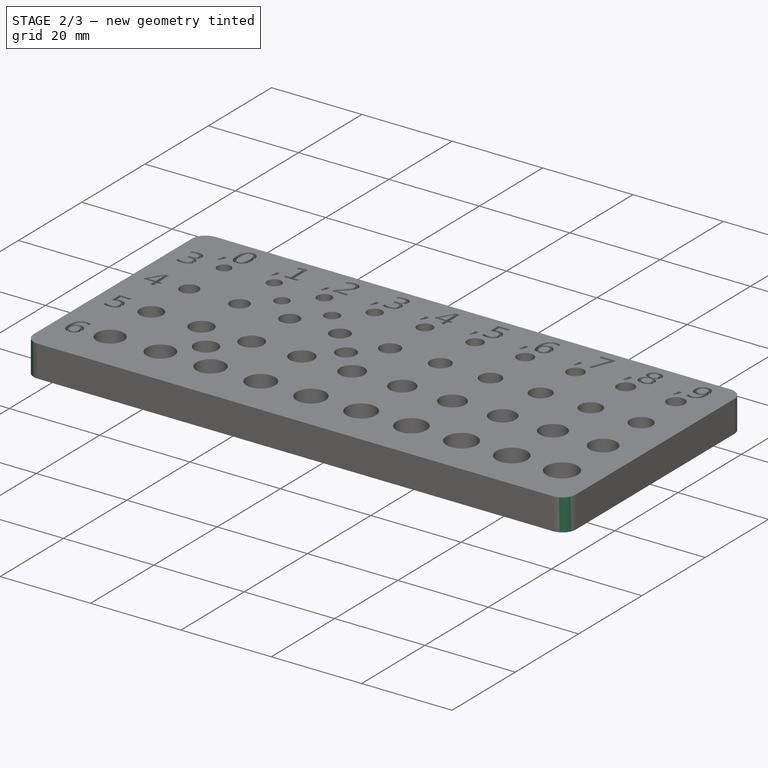
[diagram: stage 2 of 3 — iso view after this stage's code; geometry added in this stage tinted green]
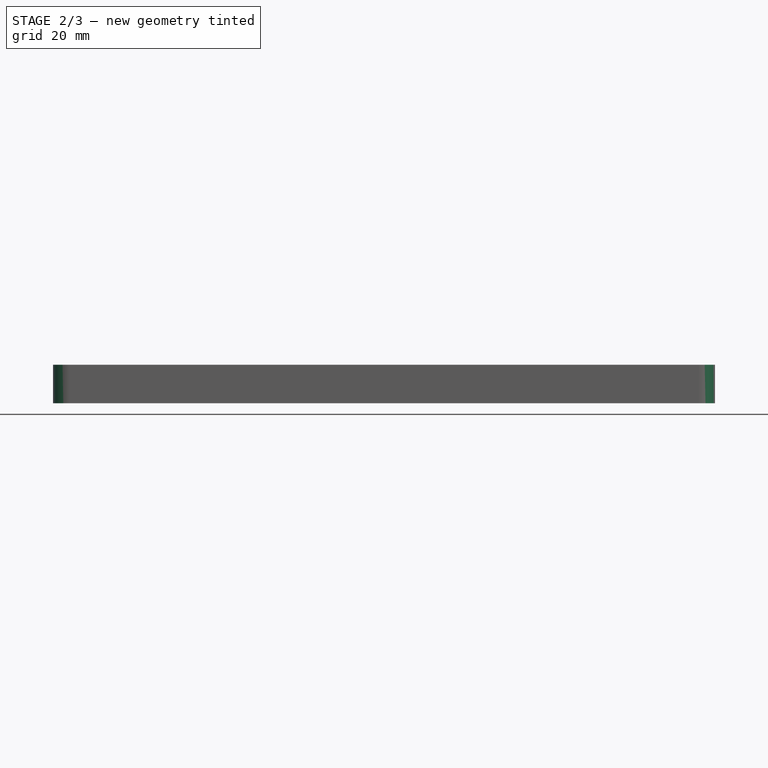
[diagram: stage 2 of 3 — front view after this stage's code; geometry added in this stage tinted green]
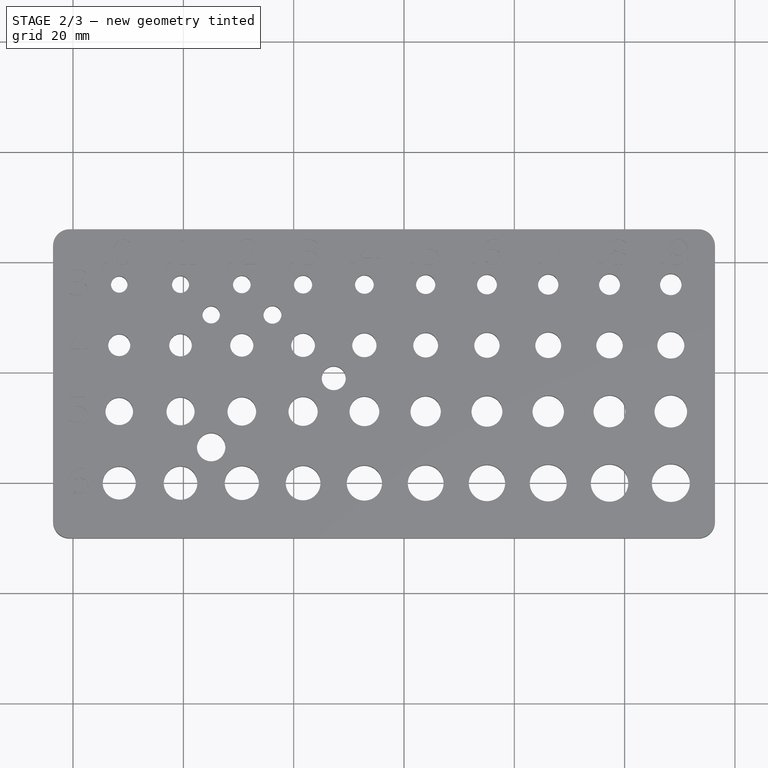
[diagram: stage 2 of 3 — top view after this stage's code; geometry added in this stage tinted green]
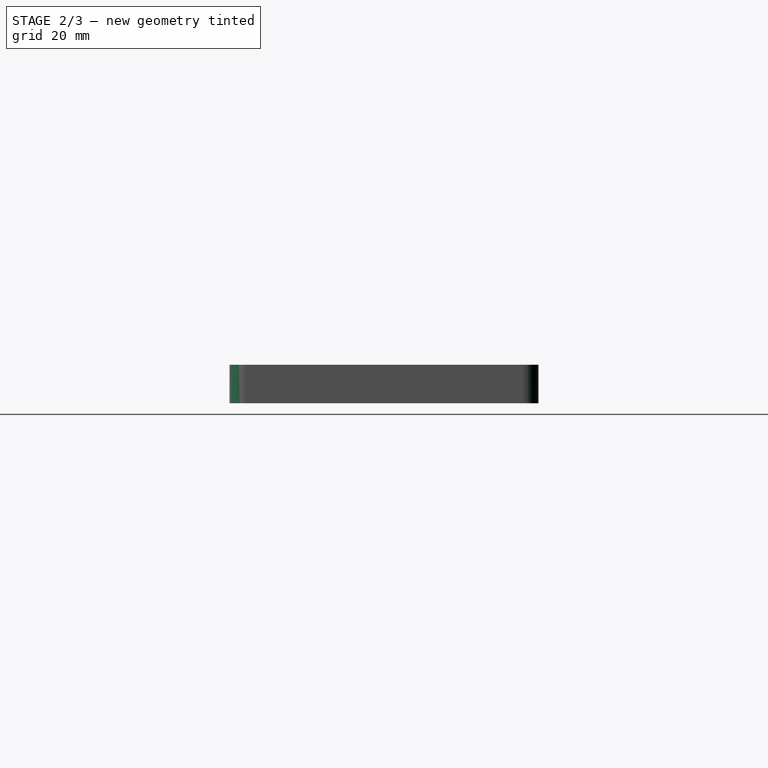
[diagram: stage 2 of 3 — right view after this stage's code; geometry added in this stage tinted green]
FEATURE [PartDesign::Fillet] Fillet
  Base = -> Pocket [Edge5,Edge8,Edge2,Edge1]
  BaseFeature = -> Pocket
  Radius = 3
  Refine = true
  SupportTransform = false
  Suppressed = false
  UseAllEdges = false
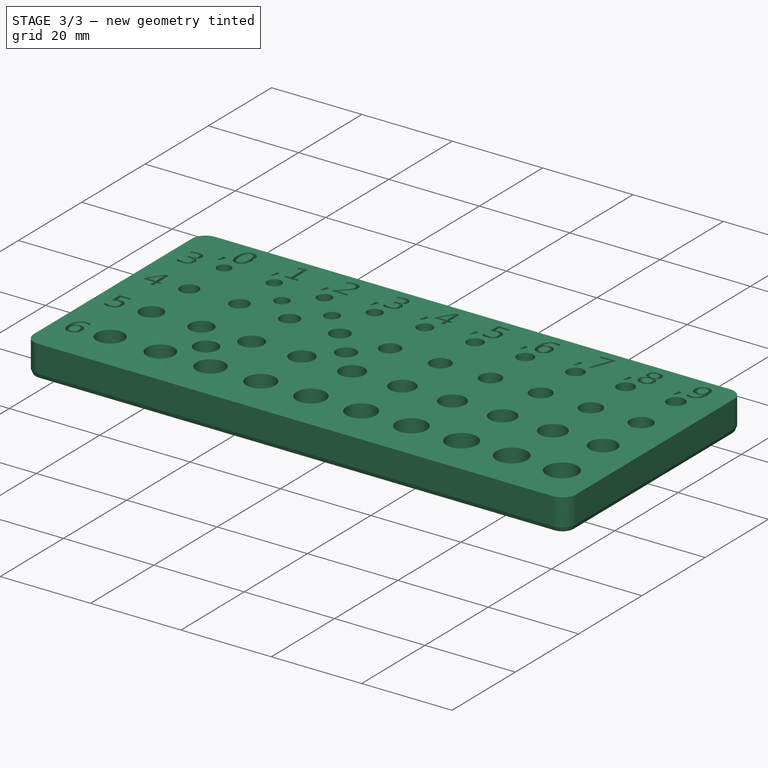
[diagram: stage 3 of 3 — iso view after this stage's code; geometry added in this stage tinted green]
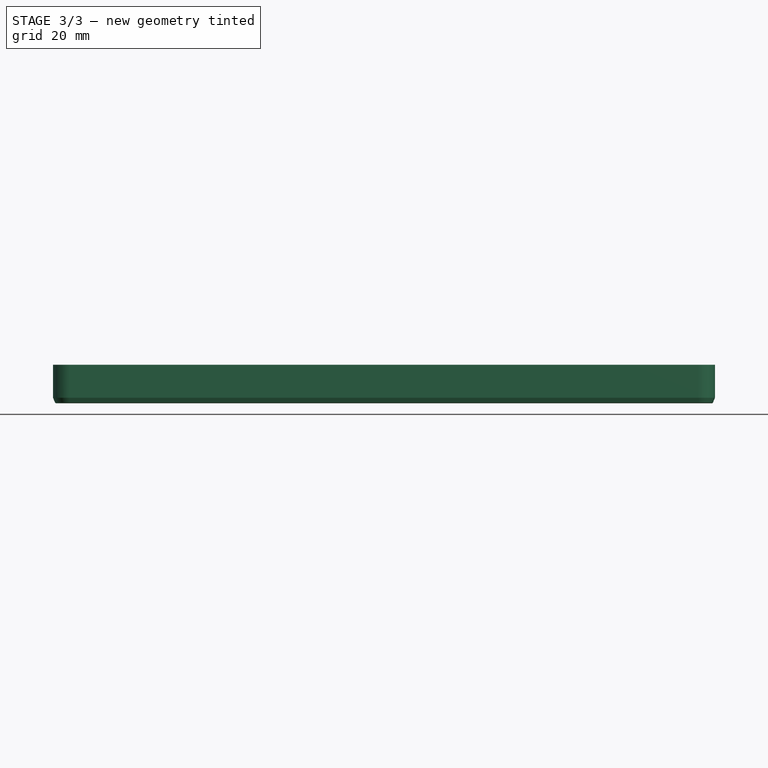
[diagram: stage 3 of 3 — front view after this stage's code; geometry added in this stage tinted green]
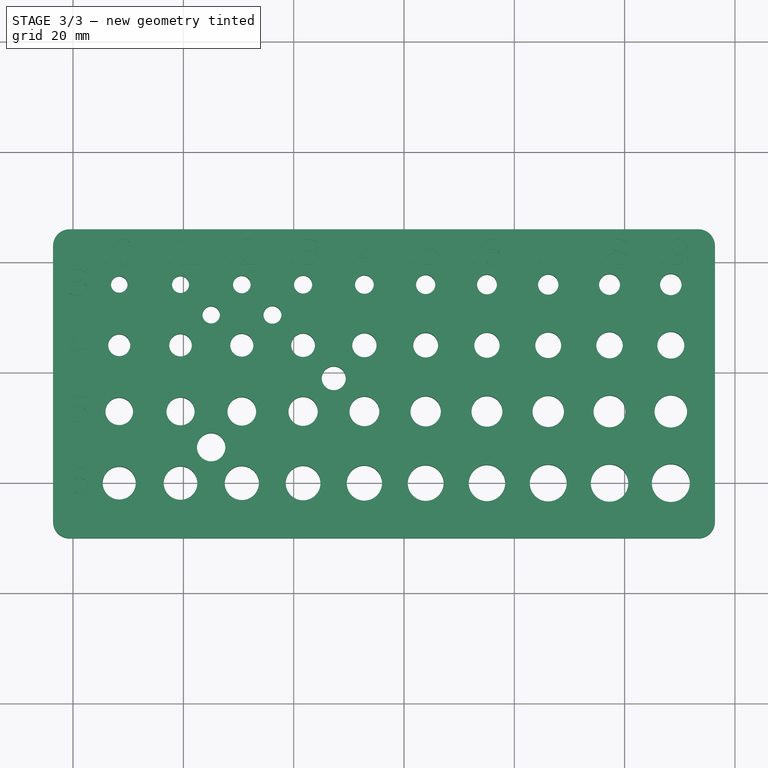
[diagram: stage 3 of 3 — top view after this stage's code; geometry added in this stage tinted green]
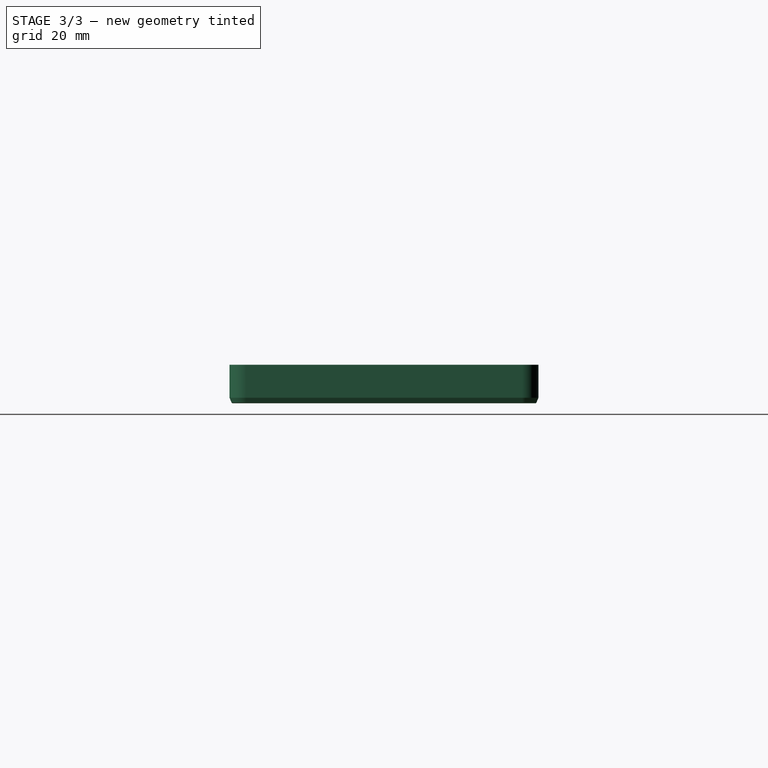
[diagram: stage 3 of 3 — right view after this stage's code; geometry added in this stage tinted green]
FEATURE [PartDesign::Chamfer] Chamfer
  Angle = 45
  Base = -> Fillet [Edge358]
  BaseFeature = -> Fillet
  ChamferType = 0
  FlipDirection = false
  Refine = true
  Size = 0.5
  Size2 = 1
  SupportTransform = false
  Suppressed = false
  UseAllEdges = false
FEATURE [PartDesign::Chamfer] Chamfer001
  Angle = 45
  Base = -> Chamfer [Edge364]
  BaseFeature = -> Chamfer
  ChamferType = 0
  FlipDirection = false
  Refine = true
  Size = 0.5
  Size2 = 1
  SupportTransform = false
  Suppressed = false
  UseAllEdges = false
FEATURE [PartDesign::Body] Body002  label="Body"
  AllowCompound = true
  Group = -> [Sketch005,Pad005,Sketch006,Pocket,Fillet,Chamfer,Chamfer001]
  Origin = -> Origin002
  Tip = -> Chamfer001
note: 14 file-system paths scrubbed to <path> (originals preserved in the JSON sidecar)
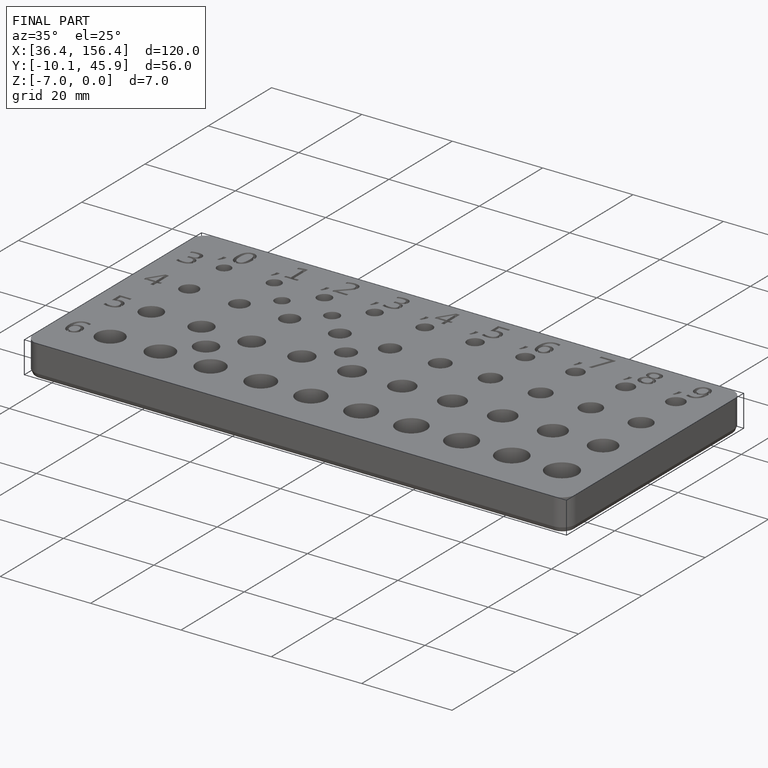
[diagram: finished part — iso view with bounding-box wireframe]
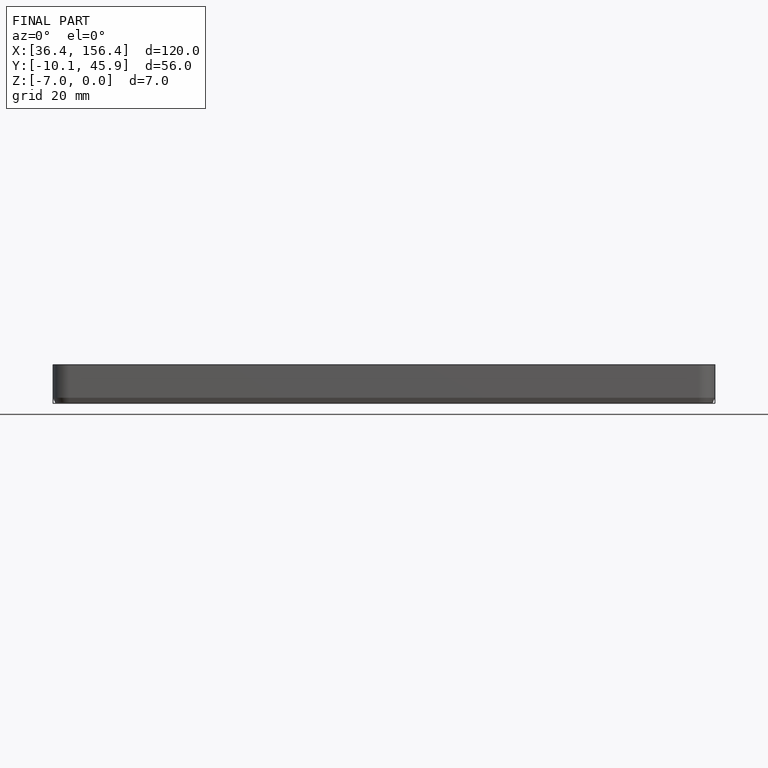
[diagram: finished part — front view with bounding-box wireframe]
